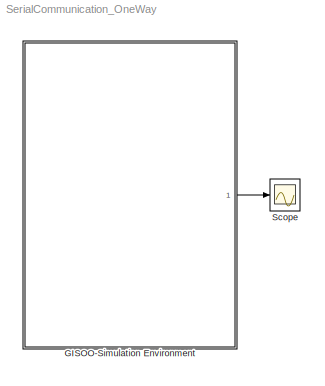
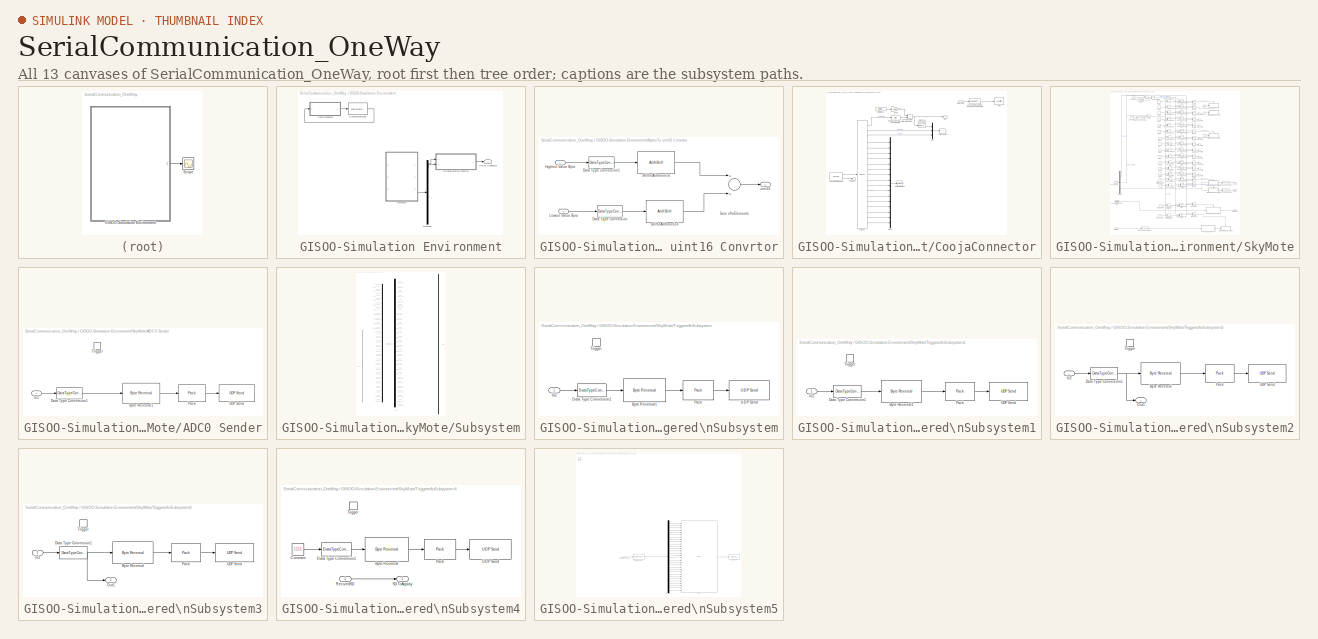
[diagram: thumbnail index - all 13 canvases of the model, root first then tree order]
MODEL SerialCommunication_OneWay
KIND model
BLOCK [SubSystem] GISOO-Simulation Environment
  FunctionWithSeparateData = off
  MaskHideContents = off
  MinAlgLoopOccurrences = off
  Opaque = off
  Ports = [0, 1]
  PropExecContextOutsideSubsystem = off
  RTWSystemCode = Auto
  RequestExecContextInheritance = off
  SID = 6
  TreatAsAtomicUnit = on
BLOCK [SubSystem] GISOO-Simulation Environment/BytesTo uint16 Convrtor
  FunctionWithSeparateData = off
  MaskHideContents = off
  MinAlgLoopOccurrences = off
  Opaque = off
  Ports = [2, 1]
  PropExecContextOutsideSubsystem = off
  RTWSystemCode = Auto
  RequestExecContextInheritance = off
  SID = 26
BLOCK [DataTypeConversion] GISOO-Simulation Environment/BytesTo uint16 Convrtor/Data Type Conversion
  OutDataTypeStr = uint16
  RndMeth = Floor
  SID = 26:422
  SaturateOnIntegerOverflow = off
BLOCK [DataTypeConversion] GISOO-Simulation Environment/BytesTo uint16 Convrtor/Data Type Conversion1
  OutDataTypeStr = uint16
  RndMeth = Floor
  SID = 26:423
  SaturateOnIntegerOverflow = off
BLOCK [Inport] GISOO-Simulation Environment/BytesTo uint16 Convrtor/Highest Value Byte
  IconDisplay = Port number
  SID = 26:420
BLOCK [Inport] GISOO-Simulation Environment/BytesTo uint16 Convrtor/Lowest Value Byte
  IconDisplay = Port number
  Port = 2
  SID = 26:421
BLOCK [ArithShift] GISOO-Simulation Environment/BytesTo uint16 Convrtor/Shift\nArithmetic4
  BitShiftDirection = Right
  InputPortMap = u0
  Ports = [1, 1]
  SID = 26:424
BLOCK [ArithShift] GISOO-Simulation Environment/BytesTo uint16 Convrtor/Shift\nArithmetic6
  BitShiftDirection = Left
  BitShiftNumber = 8
  InputPortMap = u0
  Ports = [1, 1]
  SID = 26:425
BLOCK [Sum] GISOO-Simulation Environment/BytesTo uint16 Convrtor/Sum of\nElements
  AccumDataTypeStr = Inherit: Same as first input
  CollapseDim = 4
  InputSameDT = off
  OutDataTypeStr = uint16
  Ports = [2, 1]
  SID = 26:426
  SaturateOnIntegerOverflow = off
BLOCK [Outport] GISOO-Simulation Environment/BytesTo uint16 Convrtor/uint16
  IconDisplay = Port number
  SID = 26:427
BLOCK [SubSystem] GISOO-Simulation Environment/CoojaConnector
  FunctionWithSeparateData = off
  MaskHideContents = off
  MinAlgLoopOccurrences = off
  Opaque = off
  Ports = [1, 1]
  PropExecContextOutsideSubsystem = off
  RTWSystemCode = Auto
  RequestExecContextInheritance = off
  SID = 7
BLOCK [RelationalOperator] GISOO-Simulation Environment/CoojaConnector/Check if Cooja\nis not at same time\n(behind)
  InputSameDT = off
  Operator = >
  OutDataTypeStr = boolean
  Ports = [2, 1]
  SID = 9
BLOCK [Reference] GISOO-Simulation Environment/CoojaConnector/Check that we don't loop forever,\nif Cooja never answers  REF=simulink/Logic and Bit\nOperations/Compare\nTo Constant
  OutDataTypeStr = uint8
  Ports = [1, 1]
  SID = 10
  SourceBlock = simulink/Logic and Bit\nOperations/Compare\nTo Constant
  SourceType = Compare To Constant
  ZeroCross = off
  const = 300000
  relop = <
BLOCK [DataTypeConversion] GISOO-Simulation Environment/CoojaConnector/Data Type Conversion1
  OutDataTypeStr = uint32
  RndMeth = Floor
  SID = 11
  SaturateOnIntegerOverflow = off
BLOCK [Goto] GISOO-Simulation Environment/CoojaConnector/DataForMotes
  SID = 12
  TagVisibility = global
BLOCK [Goto] GISOO-Simulation Environment/CoojaConnector/DataForMotes1
  GotoTag = SerialData
  SID = 13
  TagVisibility = global
BLOCK [Inport] GISOO-Simulation Environment/CoojaConnector/DelayNum.
  IconDisplay = Port number
  SID = 8
BLOCK [DigitalClock] GISOO-Simulation Environment/CoojaConnector/Digital Clock
  SID = 14
  SampleTime = -1
BLOCK [Mux] GISOO-Simulation Environment/CoojaConnector/Mux
  DisplayOption = bar
  Inputs = 3
  Ports = [3, 1]
  SID = 15
BLOCK [Mux] GISOO-Simulation Environment/CoojaConnector/Mux5
  DisplayOption = bar
  Inputs = 16
  Ports = [16, 1]
  SID = 16
BLOCK [Reference] GISOO-Simulation Environment/CoojaConnector/ReceiveFromCooja  REF=xpclib/UDP/Receive
  Ports = [0, 2]
  SID = 17
  SourceBlock = xpclib/UDP/Receive
  SourceType = xpcudpbytereceive
  ipAddress = 127.0.0.1
  ipPort = 55555
  sampletime = -1
  vblLen = off
  width = 28
BLOCK [Assertion] GISOO-Simulation Environment/CoojaConnector/Stop
  AssertionFailFcn = No communication with Cooja;
  SID = 18
BLOCK [Terminator] GISOO-Simulation Environment/CoojaConnector/Terminator
  SID = 19
BLOCK [Bias] GISOO-Simulation Environment/CoojaConnector/Tolerance\ndue to rounding errors
  SID = 20
  SaturateOnIntegerOverflow = off
BLOCK [Reference] GISOO-Simulation Environment/CoojaConnector/Unpack  REF=xpclib/UDP/Unpack
  Ports = [1, 19]
  SID = 21
  SourceBlock = xpclib/UDP/Unpack
  SourceType = xpcbyte2any
  byteAlign = 1
  datatypes = {'uint32','uint32','uint32','uint8','uint8','uint8','uint8','uint8','uint8','uint8','uint8','uint8','uint8','uint8','uint8','uint8','uint8','uint8','uint8'}
  dimensions = {[1],[1],[1],[1],[1],[1],[1],[1],[1],[1],[1],[1],[1],[1],[1],[1],[1],[1],[1]}
BLOCK [Outport] GISOO-Simulation Environment/CoojaConnector/Wait
  IconDisplay = Port number
  SID = 23
BLOCK [Gain] GISOO-Simulation Environment/CoojaConnector/to ms3
  Gain = 1000
  OutDataTypeStr = Inherit: Inherit via back propagation
  ParamDataTypeStr = uint32
  SID = 22
  SaturateOnIntegerOverflow = off
BLOCK [Demux] GISOO-Simulation Environment/Demux2
  DisplayOption = bar
  Outputs = 16
  Ports = [1, 16]
  SID = 27
BLOCK [Outport] GISOO-Simulation Environment/Serial Connector
  IconDisplay = Port number
  SID = 255
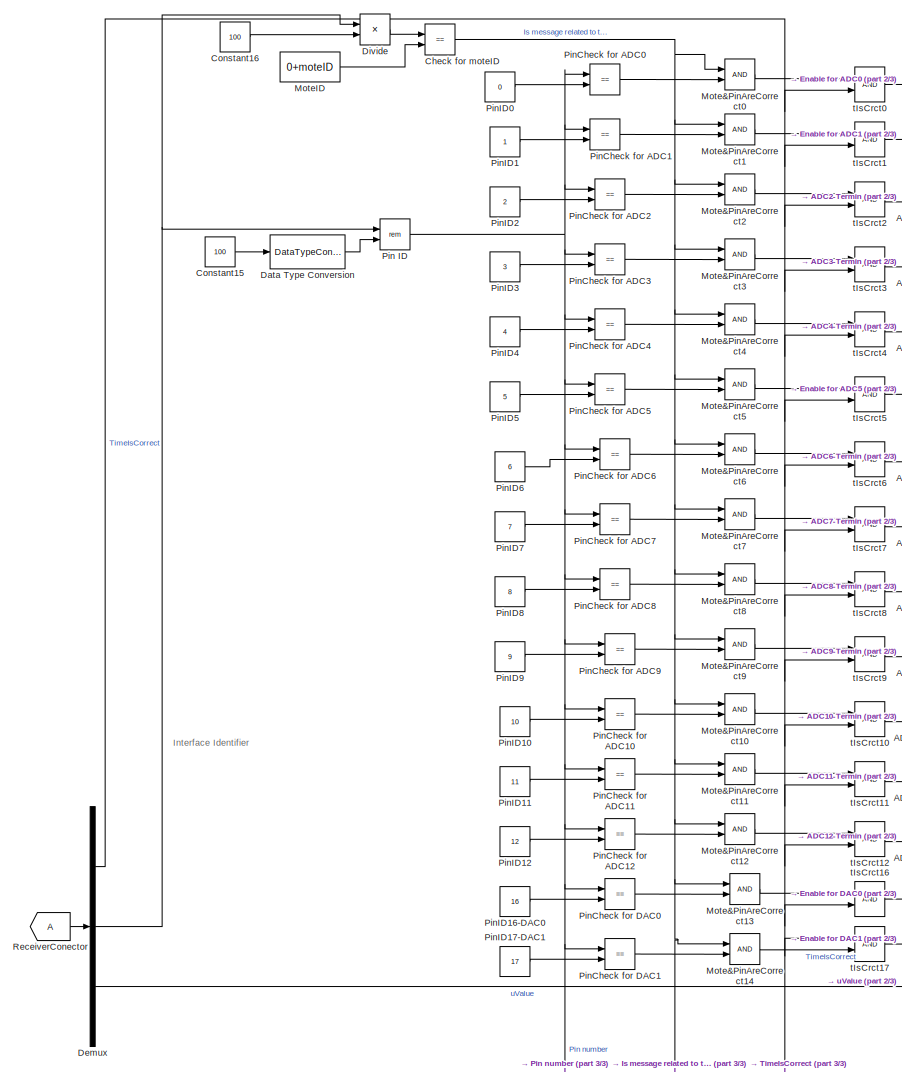
[diagram: GISOO-Simulation Environment/SkyMote - part 1/3, central region]
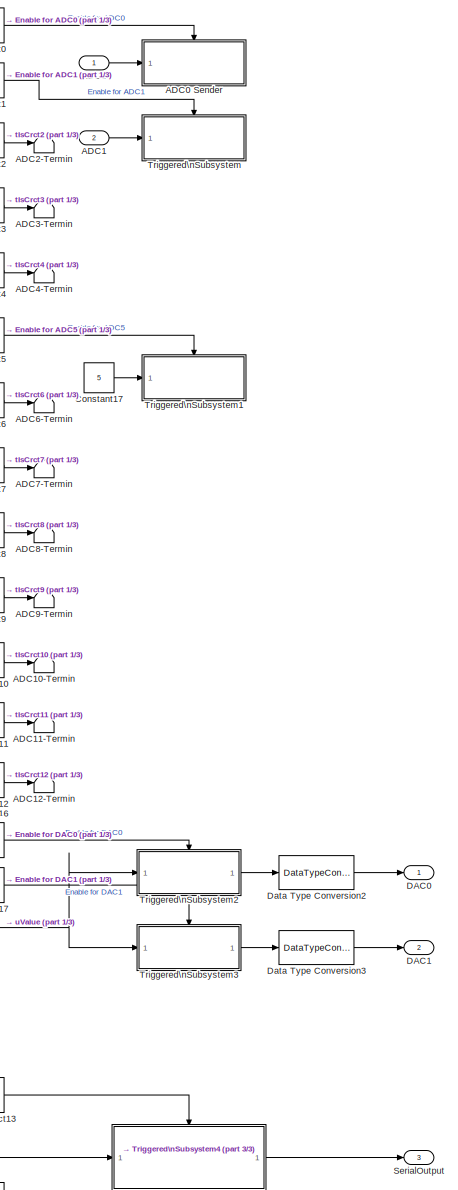
[diagram: GISOO-Simulation Environment/SkyMote - part 2/3, right side, full height]
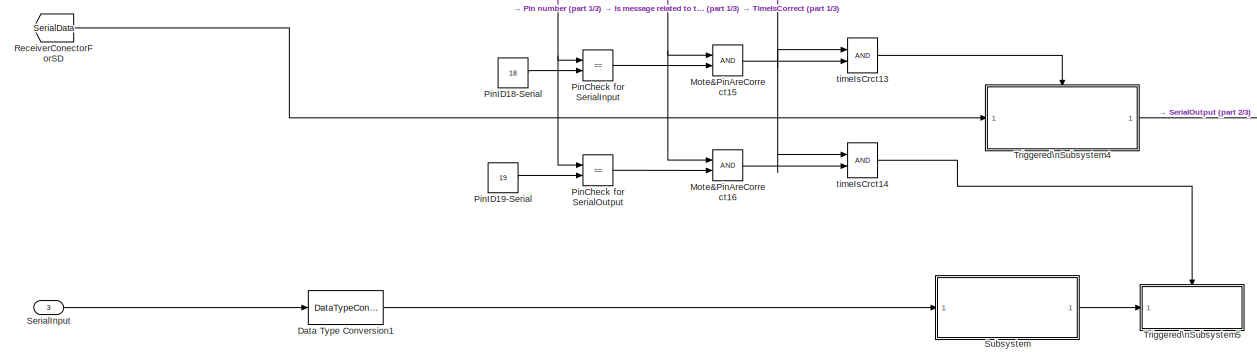
[diagram: GISOO-Simulation Environment/SkyMote - part 3/3, full width, bottom band]
BLOCK [SubSystem] GISOO-Simulation Environment/SkyMote
  FunctionWithSeparateData = off
  MaskHideContents = off
  MinAlgLoopOccurrences = off
  Opaque = off
  Ports = [3, 3]
  PropExecContextOutsideSubsystem = off
  RTWSystemCode = Auto
  RequestExecContextInheritance = off
  SID = 28
BLOCK [Inport] GISOO-Simulation Environment/SkyMote/ADC0
  IconDisplay = Port number
  SID = 29
BLOCK [SubSystem] GISOO-Simulation Environment/SkyMote/ADC0 Sender
  FunctionWithSeparateData = off
  MaskHideContents = off
  MinAlgLoopOccurrences = off
  Opaque = off
  Ports = [1, 0, 0, 1]
  PropExecContextOutsideSubsystem = off
  RTWSystemCode = Auto
  RequestExecContextInheritance = off
  SID = 32
  TreatAsAtomicUnit = on
BLOCK [Reference] GISOO-Simulation Environment/SkyMote/ADC0 Sender/Byte Reversal1  REF=etargetslib/Byte Reversal
  Ports = [1, 1]
  SID = 35
  SourceBlock = etargetslib/Byte Reversal
  SourceType = Byte Reversal
  numInp = 1
BLOCK [DataTypeConversion] GISOO-Simulation Environment/SkyMote/ADC0 Sender/Data Type Conversion1
  OutDataTypeStr = uint32
  RndMeth = Floor
  SID = 36
  SaturateOnIntegerOverflow = off
BLOCK [Inport] GISOO-Simulation Environment/SkyMote/ADC0 Sender/In2
  IconDisplay = Port number
  SID = 33
BLOCK [Reference] GISOO-Simulation Environment/SkyMote/ADC0 Sender/Pack  REF=xpclib/UDP/Pack
  Ports = [1, 1]
  SID = 37
  SourceBlock = xpclib/UDP/Pack
  SourceType = xpcany2byte
  byteAlign = 1
  datatypes = {'uint32'}
BLOCK [TriggerPort] GISOO-Simulation Environment/SkyMote/ADC0 Sender/Trigger
  Ports = []
  SID = 34
  StatesWhenEnabling = held
BLOCK [Reference] GISOO-Simulation Environment/SkyMote/ADC0 Sender/UDP Send  REF=dspnetwork/UDP Send
  Ports = [1]
  SID = 38
  SourceBlock = dspnetwork/UDP Send
  SourceType = UDP Send
  localPort = -1
  localPortSource = Automatically determine
  localURL = '0.0.0.0'
  remotePort = 18000+moteID
  remoteURL = '127.0.0.1'
  sampletime = -1
  separateLengthPort = 0
BLOCK [Inport] GISOO-Simulation Environment/SkyMote/ADC1
  IconDisplay = Port number
  Port = 2
  SID = 30
BLOCK [Terminator] GISOO-Simulation Environment/SkyMote/ADC10-Termin
  SID = 39
BLOCK [Terminator] GISOO-Simulation Environment/SkyMote/ADC11-Termin
  SID = 40
BLOCK [Terminator] GISOO-Simulation Environment/SkyMote/ADC12-Termin
  SID = 41
BLOCK [Terminator] GISOO-Simulation Environment/SkyMote/ADC2-Termin
  SID = 42
BLOCK [Terminator] GISOO-Simulation Environment/SkyMote/ADC3-Termin
  SID = 43
BLOCK [Terminator] GISOO-Simulation Environment/SkyMote/ADC4-Termin
  SID = 44
BLOCK [Terminator] GISOO-Simulation Environment/SkyMote/ADC6-Termin
  SID = 45
BLOCK [Terminator] GISOO-Simulation Environment/SkyMote/ADC7-Termin
  SID = 46
BLOCK [Terminator] GISOO-Simulation Environment/SkyMote/ADC8-Termin
  SID = 47
BLOCK [Terminator] GISOO-Simulation Environment/SkyMote/ADC9-Termin
  SID = 48
BLOCK [RelationalOperator] GISOO-Simulation Environment/SkyMote/Check for moteID
  InputSameDT = off
  Operator = ==
  OutDataTypeStr = boolean
  Ports = [2, 1]
  SID = 49
BLOCK [Constant] GISOO-Simulation Environment/SkyMote/Constant15
  SID = 50
  Value = 100
BLOCK [Constant] GISOO-Simulation Environment/SkyMote/Constant16
  SID = 51
  Value = 100
BLOCK [Constant] GISOO-Simulation Environment/SkyMote/Constant17
  SID = 52
  Value = 5
BLOCK [Outport] GISOO-Simulation Environment/SkyMote/DAC0
  IconDisplay = Port number
  SID = 251
BLOCK [Outport] GISOO-Simulation Environment/SkyMote/DAC1
  IconDisplay = Port number
  Port = 2
  SID = 252
BLOCK [DataTypeConversion] GISOO-Simulation Environment/SkyMote/Data Type Conversion
  OutDataTypeStr = uint32
  RndMeth = Floor
  SID = 53
  SaturateOnIntegerOverflow = off
BLOCK [DataTypeConversion] GISOO-Simulation Environment/SkyMote/Data Type Conversion1
  OutDataTypeStr = uint32
  RndMeth = Floor
  SID = 54
  SaturateOnIntegerOverflow = off
BLOCK [DataTypeConversion] GISOO-Simulation Environment/SkyMote/Data Type Conversion2
  OutDataTypeStr = double
  RndMeth = Floor
  SID = 55
  SaturateOnIntegerOverflow = off
BLOCK [DataTypeConversion] GISOO-Simulation Environment/SkyMote/Data Type Conversion3
  OutDataTypeStr = double
  RndMeth = Floor
  SID = 56
  SaturateOnIntegerOverflow = off
BLOCK [Demux] GISOO-Simulation Environment/SkyMote/Demux
  DisplayOption = bar
  Outputs = 3
  Ports = [1, 3]
  SID = 57
BLOCK [Product] GISOO-Simulation Environment/SkyMote/Divide
  InputSameDT = off
  Inputs = */
  OutDataTypeStr = int32
  Ports = [2, 1]
  RndMeth = Floor
  SID = 58
  SaturateOnIntegerOverflow = off
BLOCK [Logic] GISOO-Simulation Environment/SkyMote/Mote&PinAreCorrect0
  AllPortsSameDT = off
  OutDataTypeStr = boolean
  Ports = [2, 1]
  SID = 59
BLOCK [Logic] GISOO-Simulation Environment/SkyMote/Mote&PinAreCorrect1
  AllPortsSameDT = off
  OutDataTypeStr = boolean
  Ports = [2, 1]
  SID = 60
BLOCK [Logic] GISOO-Simulation Environment/SkyMote/Mote&PinAreCorrect10
  AllPortsSameDT = off
  OutDataTypeStr = boolean
  Ports = [2, 1]
  SID = 61
BLOCK [Logic] GISOO-Simulation Environment/SkyMote/Mote&PinAreCorrect11
  AllPortsSameDT = off
  OutDataTypeStr = boolean
  Ports = [2, 1]
  SID = 62
BLOCK [Logic] GISOO-Simulation Environment/SkyMote/Mote&PinAreCorrect12
  AllPortsSameDT = off
  OutDataTypeStr = boolean
  Ports = [2, 1]
  SID = 63
BLOCK [Logic] GISOO-Simulation Environment/SkyMote/Mote&PinAreCorrect13
  AllPortsSameDT = off
  OutDataTypeStr = boolean
  Ports = [2, 1]
  SID = 64
BLOCK [Logic] GISOO-Simulation Environment/SkyMote/Mote&PinAreCorrect14
  AllPortsSameDT = off
  OutDataTypeStr = boolean
  Ports = [2, 1]
  SID = 65
BLOCK [Logic] GISOO-Simulation Environment/SkyMote/Mote&PinAreCorrect15
  AllPortsSameDT = off
  OutDataTypeStr = boolean
  Ports = [2, 1]
  SID = 66
BLOCK [Logic] GISOO-Simulation Environment/SkyMote/Mote&PinAreCorrect16
  AllPortsSameDT = off
  OutDataTypeStr = boolean
  Ports = [2, 1]
  SID = 67
BLOCK [Logic] GISOO-Simulation Environment/SkyMote/Mote&PinAreCorrect2
  AllPortsSameDT = off
  OutDataTypeStr = boolean
  Ports = [2, 1]
  SID = 68
BLOCK [Logic] GISOO-Simulation Environment/SkyMote/Mote&PinAreCorrect3
  AllPortsSameDT = off
  OutDataTypeStr = boolean
  Ports = [2, 1]
  SID = 69
BLOCK [Logic] GISOO-Simulation Environment/SkyMote/Mote&PinAreCorrect4
  AllPortsSameDT = off
  OutDataTypeStr = boolean
  Ports = [2, 1]
  SID = 70
BLOCK [Logic] GISOO-Simulation Environment/SkyMote/Mote&PinAreCorrect5
  AllPortsSameDT = off
  OutDataTypeStr = boolean
  Ports = [2, 1]
  SID = 71
BLOCK [Logic] GISOO-Simulation Environment/SkyMote/Mote&PinAreCorrect6
  AllPortsSameDT = off
  OutDataTypeStr = boolean
  Ports = [2, 1]
  SID = 72
BLOCK [Logic] GISOO-Simulation Environment/SkyMote/Mote&PinAreCorrect7
  AllPortsSameDT = off
  OutDataTypeStr = boolean
  Ports = [2, 1]
  SID = 73
BLOCK [Logic] GISOO-Simulation Environment/SkyMote/Mote&PinAreCorrect8
  AllPortsSameDT = off
  OutDataTypeStr = boolean
  Ports = [2, 1]
  SID = 74
BLOCK [Logic] GISOO-Simulation Environment/SkyMote/Mote&PinAreCorrect9
  AllPortsSameDT = off
  OutDataTypeStr = boolean
  Ports = [2, 1]
  SID = 75
BLOCK [Constant] GISOO-Simulation Environment/SkyMote/MoteID
  SID = 76
  Value = 0+moteID
BLOCK [Math] GISOO-Simulation Environment/SkyMote/Pin ID
  Operator = rem
  Ports = [2, 1]
  SID = 77
BLOCK [RelationalOperator] GISOO-Simulation Environment/SkyMote/PinCheck for ADC0
  InputSameDT = off
  Operator = ==
  OutDataTypeStr = boolean
  Ports = [2, 1]
  SID = 78
BLOCK [RelationalOperator] GISOO-Simulation Environment/SkyMote/PinCheck for ADC1
  InputSameDT = off
  Operator = ==
  OutDataTypeStr = boolean
  Ports = [2, 1]
  SID = 79
BLOCK [RelationalOperator] GISOO-Simulation Environment/SkyMote/PinCheck for ADC10
  InputSameDT = off
  Operator = ==
  OutDataTypeStr = boolean
  Ports = [2, 1]
  SID = 80
BLOCK [RelationalOperator] GISOO-Simulation Environment/SkyMote/PinCheck for ADC11
  InputSameDT = off
  Operator = ==
  OutDataTypeStr = boolean
  Ports = [2, 1]
  SID = 81
BLOCK [RelationalOperator] GISOO-Simulation Environment/SkyMote/PinCheck for ADC12
  InputSameDT = off
  Operator = ==
  OutDataTypeStr = boolean
  Ports = [2, 1]
  SID = 82
BLOCK [RelationalOperator] GISOO-Simulation Environment/SkyMote/PinCheck for ADC2
  InputSameDT = off
  Operator = ==
  OutDataTypeStr = boolean
  Ports = [2, 1]
  SID = 83
BLOCK [RelationalOperator] GISOO-Simulation Environment/SkyMote/PinCheck for ADC3
  InputSameDT = off
  Operator = ==
  OutDataTypeStr = boolean
  Ports = [2, 1]
  SID = 84
BLOCK [RelationalOperator] GISOO-Simulation Environment/SkyMote/PinCheck for ADC4
  InputSameDT = off
  Operator = ==
  OutDataTypeStr = boolean
  Ports = [2, 1]
  SID = 85
BLOCK [RelationalOperator] GISOO-Simulation Environment/SkyMote/PinCheck for ADC5
  InputSameDT = off
  Operator = ==
  OutDataTypeStr = boolean
  Ports = [2, 1]
  SID = 86
BLOCK [RelationalOperator] GISOO-Simulation Environment/SkyMote/PinCheck for ADC6
  InputSameDT = off
  Operator = ==
  OutDataTypeStr = boolean
  Ports = [2, 1]
  SID = 87
BLOCK [RelationalOperator] GISOO-Simulation Environment/SkyMote/PinCheck for ADC7
  InputSameDT = off
  Operator = ==
  OutDataTypeStr = boolean
  Ports = [2, 1]
  SID = 88
BLOCK [RelationalOperator] GISOO-Simulation Environment/SkyMote/PinCheck for ADC8
  InputSameDT = off
  Operator = ==
  OutDataTypeStr = boolean
  Ports = [2, 1]
  SID = 89
BLOCK [RelationalOperator] GISOO-Simulation Environment/SkyMote/PinCheck for ADC9
  InputSameDT = off
  Operator = ==
  OutDataTypeStr = boolean
  Ports = [2, 1]
  SID = 90
BLOCK [RelationalOperator] GISOO-Simulation Environment/SkyMote/PinCheck for DAC0
  InputSameDT = off
  Operator = ==
  OutDataTypeStr = boolean
  Ports = [2, 1]
  SID = 91
BLOCK [RelationalOperator] GISOO-Simulation Environment/SkyMote/PinCheck for DAC1
  InputSameDT = off
  Operator = ==
  OutDataTypeStr = boolean
  Ports = [2, 1]
  SID = 92
BLOCK [RelationalOperator] GISOO-Simulation Environment/SkyMote/PinCheck for SerialInput
  InputSameDT = off
  Operator = ==
  OutDataTypeStr = boolean
  Ports = [2, 1]
  SID = 93
BLOCK [RelationalOperator] GISOO-Simulation Environment/SkyMote/PinCheck for SerialOutput
  InputSameDT = off
  Operator = ==
  OutDataTypeStr = boolean
  Ports = [2, 1]
  SID = 94
BLOCK [Constant] GISOO-Simulation Environment/SkyMote/PinID0
  SID = 95
  Value = 0
BLOCK [Constant] GISOO-Simulation Environment/SkyMote/PinID1
  SID = 96
BLOCK [Constant] GISOO-Simulation Environment/SkyMote/PinID10
  SID = 97
  Value = 10
BLOCK [Constant] GISOO-Simulation Environment/SkyMote/PinID11
  SID = 98
  Value = 11
BLOCK [Constant] GISOO-Simulation Environment/SkyMote/PinID12
  SID = 99
  Value = 12
BLOCK [Constant] GISOO-Simulation Environment/SkyMote/PinID16-DAC0
  SID = 100
  Value = 16
BLOCK [Constant] GISOO-Simulation Environment/SkyMote/PinID17-DAC1
  SID = 101
  Value = 17
BLOCK [Constant] GISOO-Simulation Environment/SkyMote/PinID18-Serial
  SID = 102
  Value = 18
BLOCK [Constant] GISOO-Simulation Environment/SkyMote/PinID19-Serial
  SID = 103
  Value = 19
BLOCK [Constant] GISOO-Simulation Environment/SkyMote/PinID2
  SID = 104
  Value = 2
BLOCK [Constant] GISOO-Simulation Environment/SkyMote/PinID3
  SID = 105
  Value = 3
BLOCK [Constant] GISOO-Simulation Environment/SkyMote/PinID4
  SID = 106
  Value = 4
BLOCK [Constant] GISOO-Simulation Environment/SkyMote/PinID5
  SID = 107
  Value = 5
BLOCK [Constant] GISOO-Simulation Environment/SkyMote/PinID6
  SID = 108
  Value = 6
BLOCK [Constant] GISOO-Simulation Environment/SkyMote/PinID7
  SID = 109
  Value = 7
BLOCK [Constant] GISOO-Simulation Environment/SkyMote/PinID8
  SID = 110
  Value = 8
BLOCK [Constant] GISOO-Simulation Environment/SkyMote/PinID9
  SID = 111
  Value = 9
BLOCK [From] GISOO-Simulation Environment/SkyMote/ReceiverConector
  SID = 112
  TagVisibility = global
BLOCK [From] GISOO-Simulation Environment/SkyMote/ReceiverConectorForSD
  GotoTag = SerialData
  SID = 113
  TagVisibility = global
BLOCK [Inport] GISOO-Simulation Environment/SkyMote/SerialInput
  IconDisplay = Port number
  Port = 3
  SID = 31
BLOCK [Outport] GISOO-Simulation Environment/SkyMote/SerialOutput
  IconDisplay = Port number
  Port = 3
  SID = 253
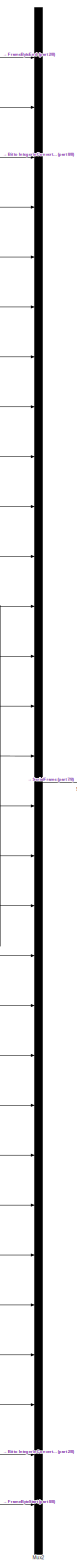
[diagram: GISOO-Simulation Environment/SkyMote/Subsystem - part 1/8, right side, full height]
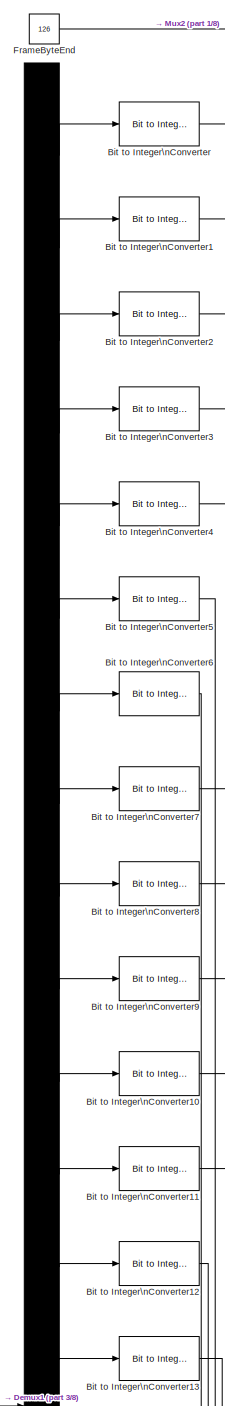
[diagram: GISOO-Simulation Environment/SkyMote/Subsystem - part 2/8, top center region]
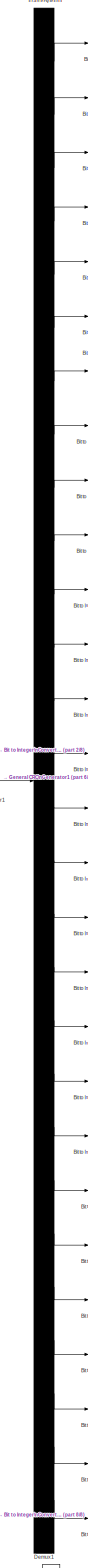
[diagram: GISOO-Simulation Environment/SkyMote/Subsystem - part 3/8, center side, full height]
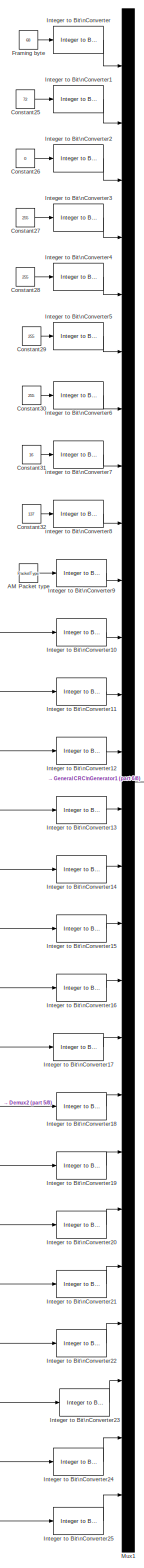
[diagram: GISOO-Simulation Environment/SkyMote/Subsystem - part 4/8, left side, full height]
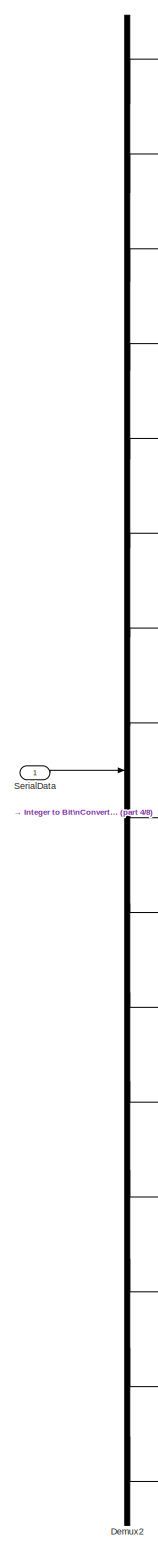
[diagram: GISOO-Simulation Environment/SkyMote/Subsystem - part 5/8, middle left region]
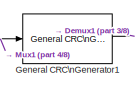
[diagram: GISOO-Simulation Environment/SkyMote/Subsystem - part 6/8, central region]
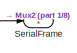
[diagram: GISOO-Simulation Environment/SkyMote/Subsystem - part 7/8, middle right region]
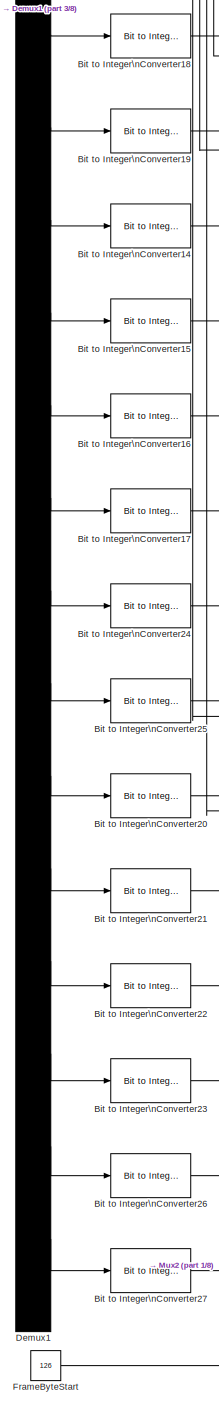
[diagram: GISOO-Simulation Environment/SkyMote/Subsystem - part 8/8, bottom center region]
BLOCK [SubSystem] GISOO-Simulation Environment/SkyMote/Subsystem
  FunctionWithSeparateData = off
  MaskHideContents = off
  MinAlgLoopOccurrences = off
  Opaque = off
  Ports = [1, 1]
  PropExecContextOutsideSubsystem = off
  RTWSystemCode = Auto
  RequestExecContextInheritance = off
  SID = 114
BLOCK [Constant] GISOO-Simulation Environment/SkyMote/Subsystem/AM Packet type
  OutDataTypeStr = double
  SID = 116
  Value = PacketType
BLOCK [Reference] GISOO-Simulation Environment/SkyMote/Subsystem/Bit to Integer\nConverter  REF=commutil2/Bit to Integer\nConverter
  Ports = [1, 1]
  SID = 117
  SourceBlock = commutil2/Bit to Integer\nConverter
  SourceType = Bit to Integer Converter
  bitOrder = MSB first
  nbits = 8
  outDtype = Inherit via internal rule
  outDtypeSigned = Inherit via internal rule
  signedOutputValues = Unsigned
BLOCK [Reference] GISOO-Simulation Environment/SkyMote/Subsystem/Bit to Integer\nConverter1  REF=commutil2/Bit to Integer\nConverter
  Ports = [1, 1]
  SID = 118
  SourceBlock = commutil2/Bit to Integer\nConverter
  SourceType = Bit to Integer Converter
  bitOrder = MSB first
  nbits = 8
  outDtype = Inherit via internal rule
  outDtypeSigned = Inherit via internal rule
  signedOutputValues = Unsigned
BLOCK [Reference] GISOO-Simulation Environment/SkyMote/Subsystem/Bit to Integer\nConverter10  REF=commutil2/Bit to Integer\nConverter
  Ports = [1, 1]
  SID = 119
  SourceBlock = commutil2/Bit to Integer\nConverter
  SourceType = Bit to Integer Converter
  bitOrder = MSB first
  nbits = 8
  outDtype = Inherit via internal rule
  outDtypeSigned = Inherit via internal rule
  signedOutputValues = Unsigned
BLOCK [Reference] GISOO-Simulation Environment/SkyMote/Subsystem/Bit to Integer\nConverter11  REF=commutil2/Bit to Integer\nConverter
  Ports = [1, 1]
  SID = 120
  SourceBlock = commutil2/Bit to Integer\nConverter
  SourceType = Bit to Integer Converter
  bitOrder = MSB first
  nbits = 8
  outDtype = Inherit via internal rule
  outDtypeSigned = Inherit via internal rule
  signedOutputValues = Unsigned
BLOCK [Reference] GISOO-Simulation Environment/SkyMote/Subsystem/Bit to Integer\nConverter12  REF=commutil2/Bit to Integer\nConverter
  Ports = [1, 1]
  SID = 121
  SourceBlock = commutil2/Bit to Integer\nConverter
  SourceType = Bit to Integer Converter
  bitOrder = MSB first
  nbits = 8
  outDtype = Inherit via internal rule
  outDtypeSigned = Inherit via internal rule
  signedOutputValues = Unsigned
BLOCK [Reference] GISOO-Simulation Environment/SkyMote/Subsystem/Bit to Integer\nConverter13  REF=commutil2/Bit to Integer\nConverter
  Ports = [1, 1]
  SID = 122
  SourceBlock = commutil2/Bit to Integer\nConverter
  SourceType = Bit to Integer Converter
  bitOrder = MSB first
  nbits = 8
  outDtype = Inherit via internal rule
  outDtypeSigned = Inherit via internal rule
  signedOutputValues = Unsigned
BLOCK [Reference] GISOO-Simulation Environment/SkyMote/Subsystem/Bit to Integer\nConverter14  REF=commutil2/Bit to Integer\nConverter
  Ports = [1, 1]
  SID = 123
  SourceBlock = commutil2/Bit to Integer\nConverter
  SourceType = Bit to Integer Converter
  bitOrder = MSB first
  nbits = 8
  outDtype = Inherit via internal rule
  outDtypeSigned = Inherit via internal rule
  signedOutputValues = Unsigned
BLOCK [Reference] GISOO-Simulation Environment/SkyMote/Subsystem/Bit to Integer\nConverter15  REF=commutil2/Bit to Integer\nConverter
  Ports = [1, 1]
  SID = 124
  SourceBlock = commutil2/Bit to Integer\nConverter
  SourceType = Bit to Integer Converter
  bitOrder = MSB first
  nbits = 8
  outDtype = Inherit via internal rule
  outDtypeSigned = Inherit via internal rule
  signedOutputValues = Unsigned
BLOCK [Reference] GISOO-Simulation Environment/SkyMote/Subsystem/Bit to Integer\nConverter16  REF=commutil2/Bit to Integer\nConverter
  Ports = [1, 1]
  SID = 125
  SourceBlock = commutil2/Bit to Integer\nConverter
  SourceType = Bit to Integer Converter
  bitOrder = MSB first
  nbits = 8
  outDtype = Inherit via internal rule
  outDtypeSigned = Inherit via internal rule
  signedOutputValues = Unsigned
BLOCK [Reference] GISOO-Simulation Environment/SkyMote/Subsystem/Bit to Integer\nConverter17  REF=commutil2/Bit to Integer\nConverter
  Ports = [1, 1]
  SID = 126
  SourceBlock = commutil2/Bit to Integer\nConverter
  SourceType = Bit to Integer Converter
  bitOrder = MSB first
  nbits = 8
  outDtype = Inherit via internal rule
  outDtypeSigned = Inherit via internal rule
  signedOutputValues = Unsigned
BLOCK [Reference] GISOO-Simulation Environment/SkyMote/Subsystem/Bit to Integer\nConverter18  REF=commutil2/Bit to Integer\nConverter
  Ports = [1, 1]
  SID = 127
  SourceBlock = commutil2/Bit to Integer\nConverter
  SourceType = Bit to Integer Converter
  bitOrder = MSB first
  nbits = 8
  outDtype = Inherit via internal rule
  outDtypeSigned = Inherit via internal rule
  signedOutputValues = Unsigned
BLOCK [Reference] GISOO-Simulation Environment/SkyMote/Subsystem/Bit to Integer\nConverter19  REF=commutil2/Bit to Integer\nConverter
  Ports = [1, 1]
  SID = 128
  SourceBlock = commutil2/Bit to Integer\nConverter
  SourceType = Bit to Integer Converter
  bitOrder = MSB first
  nbits = 8
  outDtype = Inherit via internal rule
  outDtypeSigned = Inherit via internal rule
  signedOutputValues = Unsigned
BLOCK [Reference] GISOO-Simulation Environment/SkyMote/Subsystem/Bit to Integer\nConverter2  REF=commutil2/Bit to Integer\nConverter
  Ports = [1, 1]
  SID = 129
  SourceBlock = commutil2/Bit to Integer\nConverter
  SourceType = Bit to Integer Converter
  bitOrder = MSB first
  nbits = 8
  outDtype = Inherit via internal rule
  outDtypeSigned = Inherit via internal rule
  signedOutputValues = Unsigned
BLOCK [Reference] GISOO-Simulation Environment/SkyMote/Subsystem/Bit to Integer\nConverter20  REF=commutil2/Bit to Integer\nConverter
  Ports = [1, 1]
  SID = 130
  SourceBlock = commutil2/Bit to Integer\nConverter
  SourceType = Bit to Integer Converter
  bitOrder = MSB first
  nbits = 8
  outDtype = Inherit via internal rule
  outDtypeSigned = Inherit via internal rule
  signedOutputValues = Unsigned
BLOCK [Reference] GISOO-Simulation Environment/SkyMote/Subsystem/Bit to Integer\nConverter21  REF=commutil2/Bit to Integer\nConverter
  Ports = [1, 1]
  SID = 131
  SourceBlock = commutil2/Bit to Integer\nConverter
  SourceType = Bit to Integer Converter
  bitOrder = MSB first
  nbits = 8
  outDtype = Inherit via internal rule
  outDtypeSigned = Inherit via internal rule
  signedOutputValues = Unsigned
BLOCK [Reference] GISOO-Simulation Environment/SkyMote/Subsystem/Bit to Integer\nConverter22  REF=commutil2/Bit to Integer\nConverter
  Ports = [1, 1]
  SID = 132
  SourceBlock = commutil2/Bit to Integer\nConverter
  SourceType = Bit to Integer Converter
  bitOrder = MSB first
  nbits = 8
  outDtype = Inherit via internal rule
  outDtypeSigned = Inherit via internal rule
  signedOutputValues = Unsigned
BLOCK [Reference] GISOO-Simulation Environment/SkyMote/Subsystem/Bit to Integer\nConverter23  REF=commutil2/Bit to Integer\nConverter
  Ports = [1, 1]
  SID = 133
  SourceBlock = commutil2/Bit to Integer\nConverter
  SourceType = Bit to Integer Converter
  bitOrder = MSB first
  nbits = 8
  outDtype = Inherit via internal rule
  outDtypeSigned = Inherit via internal rule
  signedOutputValues = Unsigned
BLOCK [Reference] GISOO-Simulation Environment/SkyMote/Subsystem/Bit to Integer\nConverter24  REF=commutil2/Bit to Integer\nConverter
  Ports = [1, 1]
  SID = 134
  SourceBlock = commutil2/Bit to Integer\nConverter
  SourceType = Bit to Integer Converter
  bitOrder = MSB first
  nbits = 8
  outDtype = Inherit via internal rule
  outDtypeSigned = Inherit via internal rule
  signedOutputValues = Unsigned
BLOCK [Reference] GISOO-Simulation Environment/SkyMote/Subsystem/Bit to Integer\nConverter25  REF=commutil2/Bit to Integer\nConverter
  Ports = [1, 1]
  SID = 135
  SourceBlock = commutil2/Bit to Integer\nConverter
  SourceType = Bit to Integer Converter
  bitOrder = MSB first
  nbits = 8
  outDtype = Inherit via internal rule
  outDtypeSigned = Inherit via internal rule
  signedOutputValues = Unsigned
BLOCK [Reference] GISOO-Simulation Environment/SkyMote/Subsystem/Bit to Integer\nConverter26  REF=commutil2/Bit to Integer\nConverter
  Ports = [1, 1]
  SID = 136
  SourceBlock = commutil2/Bit to Integer\nConverter
  SourceType = Bit to Integer Converter
  bitOrder = MSB first
  nbits = 8
  outDtype = Inherit via internal rule
  outDtypeSigned = Inherit via internal rule
  signedOutputValues = Unsigned
BLOCK [Reference] GISOO-Simulation Environment/SkyMote/Subsystem/Bit to Integer\nConverter27  REF=commutil2/Bit to Integer\nConverter
  Ports = [1, 1]
  SID = 137
  SourceBlock = commutil2/Bit to Integer\nConverter
  SourceType = Bit to Integer Converter
  bitOrder = MSB first
  nbits = 8
  outDtype = Inherit via internal rule
  outDtypeSigned = Inherit via internal rule
  signedOutputValues = Unsigned
BLOCK [Reference] GISOO-Simulation Environment/SkyMote/Subsystem/Bit to Integer\nConverter3  REF=commutil2/Bit to Integer\nConverter
  Ports = [1, 1]
  SID = 138
  SourceBlock = commutil2/Bit to Integer\nConverter
  SourceType = Bit to Integer Converter
  bitOrder = MSB first
  nbits = 8
  outDtype = Inherit via internal rule
  outDtypeSigned = Inherit via internal rule
  signedOutputValues = Unsigned
BLOCK [Reference] GISOO-Simulation Environment/SkyMote/Subsystem/Bit to Integer\nConverter4  REF=commutil2/Bit to Integer\nConverter
  Ports = [1, 1]
  SID = 139
  SourceBlock = commutil2/Bit to Integer\nConverter
  SourceType = Bit to Integer Converter
  bitOrder = MSB first
  nbits = 8
  outDtype = Inherit via internal rule
  outDtypeSigned = Inherit via internal rule
  signedOutputValues = Unsigned
BLOCK [Reference] GISOO-Simulation Environment/SkyMote/Subsystem/Bit to Integer\nConverter5  REF=commutil2/Bit to Integer\nConverter
  Ports = [1, 1]
  SID = 140
  SourceBlock = commutil2/Bit to Integer\nConverter
  SourceType = Bit to Integer Converter
  bitOrder = MSB first
  nbits = 8
  outDtype = Inherit via internal rule
  outDtypeSigned = Inherit via internal rule
  signedOutputValues = Unsigned
BLOCK [Reference] GISOO-Simulation Environment/SkyMote/Subsystem/Bit to Integer\nConverter6  REF=commutil2/Bit to Integer\nConverter
  Ports = [1, 1]
  SID = 141
  SourceBlock = commutil2/Bit to Integer\nConverter
  SourceType = Bit to Integer Converter
  bitOrder = MSB first
  nbits = 8
  outDtype = Inherit via internal rule
  outDtypeSigned = Inherit via internal rule
  signedOutputValues = Unsigned
BLOCK [Reference] GISOO-Simulation Environment/SkyMote/Subsystem/Bit to Integer\nConverter7  REF=commutil2/Bit to Integer\nConverter
  Ports = [1, 1]
  SID = 142
  SourceBlock = commutil2/Bit to Integer\nConverter
  SourceType = Bit to Integer Converter
  bitOrder = MSB first
  nbits = 8
  outDtype = Inherit via internal rule
  outDtypeSigned = Inherit via internal rule
  signedOutputValues = Unsigned
BLOCK [Reference] GISOO-Simulation Environment/SkyMote/Subsystem/Bit to Integer\nConverter8  REF=commutil2/Bit to Integer\nConverter
  Ports = [1, 1]
  SID = 143
  SourceBlock = commutil2/Bit to Integer\nConverter
  SourceType = Bit to Integer Converter
  bitOrder = MSB first
  nbits = 8
  outDtype = Inherit via internal rule
  outDtypeSigned = Inherit via internal rule
  signedOutputValues = Unsigned
BLOCK [Reference] GISOO-Simulation Environment/SkyMote/Subsystem/Bit to Integer\nConverter9  REF=commutil2/Bit to Integer\nConverter
  Ports = [1, 1]
  SID = 144
  SourceBlock = commutil2/Bit to Integer\nConverter
  SourceType = Bit to Integer Converter
  bitOrder = MSB first
  nbits = 8
  outDtype = Inherit via internal rule
  outDtypeSigned = Inherit via internal rule
  signedOutputValues = Unsigned
BLOCK [Constant] GISOO-Simulation Environment/SkyMote/Subsystem/Constant25
  OutDataTypeStr = double
  SID = 145
  Value = 72
BLOCK [Constant] GISOO-Simulation Environment/SkyMote/Subsystem/Constant26
  OutDataTypeStr = double
  SID = 146
  Value = 0
BLOCK [Constant] GISOO-Simulation Environment/SkyMote/Subsystem/Constant27
  OutDataTypeStr = double
  SID = 147
  Value = 255
BLOCK [Constant] GISOO-Simulation Environment/SkyMote/Subsystem/Constant28
  OutDataTypeStr = double
  SID = 148
  Value = 255
BLOCK [Constant] GISOO-Simulation Environment/SkyMote/Subsystem/Constant29
  OutDataTypeStr = double
  SID = 149
  Value = 255
BLOCK [Constant] GISOO-Simulation Environment/SkyMote/Subsystem/Constant30
  OutDataTypeStr = double
  SID = 150
  Value = 255
BLOCK [Constant] GISOO-Simulation Environment/SkyMote/Subsystem/Constant31
  OutDataTypeStr = double
  SID = 151
  Value = 16
BLOCK [Constant] GISOO-Simulation Environment/SkyMote/Subsystem/Constant32
  OutDataTypeStr = double
  SID = 152
  Value = 137
BLOCK [Demux] GISOO-Simulation Environment/SkyMote/Subsystem/Demux1
  DisplayOption = bar
  Outputs = 28
  Ports = [1, 28]
  SID = 153
BLOCK [Demux] GISOO-Simulation Environment/SkyMote/Subsystem/Demux2
  DisplayOption = bar
  Outputs = 16
  Ports = [1, 16]
  SID = 154
BLOCK [Constant] GISOO-Simulation Environment/SkyMote/Subsystem/FrameByteEnd
  OutDataTypeStr = uint8
  SID = 155
  Value = 126
BLOCK [Constant] GISOO-Simulation Environment/SkyMote/Subsystem/FrameByteStart
  OutDataTypeStr = uint8
  SID = 156
  Value = 126
BLOCK [Constant] GISOO-Simulation Environment/SkyMote/Subsystem/Framing byte
  OutDataTypeStr = uint8
  SID = 157
  Value = 68
BLOCK [Reference] GISOO-Simulation Environment/SkyMote/Subsystem/General CRC\nGenerator1  REF=commcrc2/General CRC\nGenerator
  Ports = [1, 1]
  SID = 158
  SourceBlock = commcrc2/General CRC\nGenerator
  SourceType = General CRC Generator
  directMethod = off
  finalXOR = 0
  genPoly = [1 0 0 0 1 0 0 0 0 0 0 1 0 0 0 0 1]
  iniStates = 0
  numChecksums = 1
  reflectChecksums = off
  reflectInputBytes = off
BLOCK [Reference] GISOO-Simulation Environment/SkyMote/Subsystem/Integer to Bit\nConverter  REF=commutil2/Integer to Bit\nConverter
  Ports = [1, 1]
  SID = 159
  SourceBlock = commutil2/Integer to Bit\nConverter
  SourceType = Integer to Bit Converter
  bitOrder = MSB first
  nbits = 8
  outDtype = boolean
  signedInputValues = Unsigned
BLOCK [Reference] GISOO-Simulation Environment/SkyMote/Subsystem/Integer to Bit\nConverter1  REF=commutil2/Integer to Bit\nConverter
  Ports = [1, 1]
  SID = 160
  SourceBlock = commutil2/Integer to Bit\nConverter
  SourceType = Integer to Bit Converter
  bitOrder = MSB first
  nbits = 8
  outDtype = boolean
  signedInputValues = Unsigned
BLOCK [Reference] GISOO-Simulation Environment/SkyMote/Subsystem/Integer to Bit\nConverter10  REF=commutil2/Integer to Bit\nConverter
  Ports = [1, 1]
  SID = 161
  SourceBlock = commutil2/Integer to Bit\nConverter
  SourceType = Integer to Bit Converter
  bitOrder = MSB first
  nbits = 8
  outDtype = boolean
  signedInputValues = Unsigned
BLOCK [Reference] GISOO-Simulation Environment/SkyMote/Subsystem/Integer to Bit\nConverter11  REF=commutil2/Integer to Bit\nConverter
  Ports = [1, 1]
  SID = 162
  SourceBlock = commutil2/Integer to Bit\nConverter
  SourceType = Integer to Bit Converter
  bitOrder = MSB first
  nbits = 8
  outDtype = boolean
  signedInputValues = Unsigned
BLOCK [Reference] GISOO-Simulation Environment/SkyMote/Subsystem/Integer to Bit\nConverter12  REF=commutil2/Integer to Bit\nConverter
  Ports = [1, 1]
  SID = 163
  SourceBlock = commutil2/Integer to Bit\nConverter
  SourceType = Integer to Bit Converter
  bitOrder = MSB first
  nbits = 8
  outDtype = boolean
  signedInputValues = Unsigned
BLOCK [Reference] GISOO-Simulation Environment/SkyMote/Subsystem/Integer to Bit\nConverter13  REF=commutil2/Integer to Bit\nConverter
  Ports = [1, 1]
  SID = 164
  SourceBlock = commutil2/Integer to Bit\nConverter
  SourceType = Integer to Bit Converter
  bitOrder = MSB first
  nbits = 8
  outDtype = boolean
  signedInputValues = Unsigned
BLOCK [Reference] GISOO-Simulation Environment/SkyMote/Subsystem/Integer to Bit\nConverter14  REF=commutil2/Integer to Bit\nConverter
  Ports = [1, 1]
  SID = 165
  SourceBlock = commutil2/Integer to Bit\nConverter
  SourceType = Integer to Bit Converter
  bitOrder = MSB first
  nbits = 8
  outDtype = boolean
  signedInputValues = Unsigned
BLOCK [Reference] GISOO-Simulation Environment/SkyMote/Subsystem/Integer to Bit\nConverter15  REF=commutil2/Integer to Bit\nConverter
  Ports = [1, 1]
  SID = 166
  SourceBlock = commutil2/Integer to Bit\nConverter
  SourceType = Integer to Bit Converter
  bitOrder = MSB first
  nbits = 8
  outDtype = boolean
  signedInputValues = Unsigned
BLOCK [Reference] GISOO-Simulation Environment/SkyMote/Subsystem/Integer to Bit\nConverter16  REF=commutil2/Integer to Bit\nConverter
  Ports = [1, 1]
  SID = 167
  SourceBlock = commutil2/Integer to Bit\nConverter
  SourceType = Integer to Bit Converter
  bitOrder = MSB first
  nbits = 8
  outDtype = boolean
  signedInputValues = Unsigned
BLOCK [Reference] GISOO-Simulation Environment/SkyMote/Subsystem/Integer to Bit\nConverter17  REF=commutil2/Integer to Bit\nConverter
  Ports = [1, 1]
  SID = 168
  SourceBlock = commutil2/Integer to Bit\nConverter
  SourceType = Integer to Bit Converter
  bitOrder = MSB first
  nbits = 8
  outDtype = boolean
  signedInputValues = Unsigned
BLOCK [Reference] GISOO-Simulation Environment/SkyMote/Subsystem/Integer to Bit\nConverter18  REF=commutil2/Integer to Bit\nConverter
  Ports = [1, 1]
  SID = 169
  SourceBlock = commutil2/Integer to Bit\nConverter
  SourceType = Integer to Bit Converter
  bitOrder = MSB first
  nbits = 8
  outDtype = boolean
  signedInputValues = Unsigned
BLOCK [Reference] GISOO-Simulation Environment/SkyMote/Subsystem/Integer to Bit\nConverter19  REF=commutil2/Integer to Bit\nConverter
  Ports = [1, 1]
  SID = 170
  SourceBlock = commutil2/Integer to Bit\nConverter
  SourceType = Integer to Bit Converter
  bitOrder = MSB first
  nbits = 8
  outDtype = boolean
  signedInputValues = Unsigned
BLOCK [Reference] GISOO-Simulation Environment/SkyMote/Subsystem/Integer to Bit\nConverter2  REF=commutil2/Integer to Bit\nConverter
  Ports = [1, 1]
  SID = 171
  SourceBlock = commutil2/Integer to Bit\nConverter
  SourceType = Integer to Bit Converter
  bitOrder = MSB first
  nbits = 8
  outDtype = boolean
  signedInputValues = Unsigned
BLOCK [Reference] GISOO-Simulation Environment/SkyMote/Subsystem/Integer to Bit\nConverter20  REF=commutil2/Integer to Bit\nConverter
  Ports = [1, 1]
  SID = 172
  SourceBlock = commutil2/Integer to Bit\nConverter
  SourceType = Integer to Bit Converter
  bitOrder = MSB first
  nbits = 8
  outDtype = boolean
  signedInputValues = Unsigned
BLOCK [Reference] GISOO-Simulation Environment/SkyMote/Subsystem/Integer to Bit\nConverter21  REF=commutil2/Integer to Bit\nConverter
  Ports = [1, 1]
  SID = 173
  SourceBlock = commutil2/Integer to Bit\nConverter
  SourceType = Integer to Bit Converter
  bitOrder = MSB first
  nbits = 8
  outDtype = boolean
  signedInputValues = Unsigned
BLOCK [Reference] GISOO-Simulation Environment/SkyMote/Subsystem/Integer to Bit\nConverter22  REF=commutil2/Integer to Bit\nConverter
  Ports = [1, 1]
  SID = 174
  SourceBlock = commutil2/Integer to Bit\nConverter
  SourceType = Integer to Bit Converter
  bitOrder = MSB first
  nbits = 8
  outDtype = boolean
  signedInputValues = Unsigned
BLOCK [Reference] GISOO-Simulation Environment/SkyMote/Subsystem/Integer to Bit\nConverter23  REF=commutil2/Integer to Bit\nConverter
  Ports = [1, 1]
  SID = 175
  SourceBlock = commutil2/Integer to Bit\nConverter
  SourceType = Integer to Bit Converter
  bitOrder = MSB first
  nbits = 8
  outDtype = boolean
  signedInputValues = Unsigned
BLOCK [Reference] GISOO-Simulation Environment/SkyMote/Subsystem/Integer to Bit\nConverter24  REF=commutil2/Integer to Bit\nConverter
  Ports = [1, 1]
  SID = 176
  SourceBlock = commutil2/Integer to Bit\nConverter
  SourceType = Integer to Bit Converter
  bitOrder = MSB first
  nbits = 8
  outDtype = boolean
  signedInputValues = Unsigned
BLOCK [Reference] GISOO-Simulation Environment/SkyMote/Subsystem/Integer to Bit\nConverter25  REF=commutil2/Integer to Bit\nConverter
  Ports = [1, 1]
  SID = 177
  SourceBlock = commutil2/Integer to Bit\nConverter
  SourceType = Integer to Bit Converter
  bitOrder = MSB first
  nbits = 8
  outDtype = boolean
  signedInputValues = Unsigned
BLOCK [Reference] GISOO-Simulation Environment/SkyMote/Subsystem/Integer to Bit\nConverter3  REF=commutil2/Integer to Bit\nConverter
  Ports = [1, 1]
  SID = 178
  SourceBlock = commutil2/Integer to Bit\nConverter
  SourceType = Integer to Bit Converter
  bitOrder = MSB first
  nbits = 8
  outDtype = boolean
  signedInputValues = Unsigned
BLOCK [Reference] GISOO-Simulation Environment/SkyMote/Subsystem/Integer to Bit\nConverter4  REF=commutil2/Integer to Bit\nConverter
  Ports = [1, 1]
  SID = 179
  SourceBlock = commutil2/Integer to Bit\nConverter
  SourceType = Integer to Bit Converter
  bitOrder = MSB first
  nbits = 8
  outDtype = boolean
  signedInputValues = Unsigned
BLOCK [Reference] GISOO-Simulation Environment/SkyMote/Subsystem/Integer to Bit\nConverter5  REF=commutil2/Integer to Bit\nConverter
  Ports = [1, 1]
  SID = 180
  SourceBlock = commutil2/Integer to Bit\nConverter
  SourceType = Integer to Bit Converter
  bitOrder = MSB first
  nbits = 8
  outDtype = boolean
  signedInputValues = Unsigned
BLOCK [Reference] GISOO-Simulation Environment/SkyMote/Subsystem/Integer to Bit\nConverter6  REF=commutil2/Integer to Bit\nConverter
  Ports = [1, 1]
  SID = 181
  SourceBlock = commutil2/Integer to Bit\nConverter
  SourceType = Integer to Bit Converter
  bitOrder = MSB first
  nbits = 8
  outDtype = boolean
  signedInputValues = Unsigned
BLOCK [Reference] GISOO-Simulation Environment/SkyMote/Subsystem/Integer to Bit\nConverter7  REF=commutil2/Integer to Bit\nConverter
  Ports = [1, 1]
  SID = 182
  SourceBlock = commutil2/Integer to Bit\nConverter
  SourceType = Integer to Bit Converter
  bitOrder = MSB first
  nbits = 8
  outDtype = boolean
  signedInputValues = Unsigned
BLOCK [Reference] GISOO-Simulation Environment/SkyMote/Subsystem/Integer to Bit\nConverter8  REF=commutil2/Integer to Bit\nConverter
  Ports = [1, 1]
  SID = 183
  SourceBlock = commutil2/Integer to Bit\nConverter
  SourceType = Integer to Bit Converter
  bitOrder = MSB first
  nbits = 8
  outDtype = boolean
  signedInputValues = Unsigned
BLOCK [Reference] GISOO-Simulation Environment/SkyMote/Subsystem/Integer to Bit\nConverter9  REF=commutil2/Integer to Bit\nConverter
  Ports = [1, 1]
  SID = 184
  SourceBlock = commutil2/Integer to Bit\nConverter
  SourceType = Integer to Bit Converter
  bitOrder = MSB first
  nbits = 8
  outDtype = boolean
  signedInputValues = Unsigned
BLOCK [Mux] GISOO-Simulation Environment/SkyMote/Subsystem/Mux1
  DisplayOption = bar
  Inputs = 26
  Ports = [26, 1]
  SID = 185
BLOCK [Mux] GISOO-Simulation Environment/SkyMote/Subsystem/Mux2
  DisplayOption = bar
  Inputs = 30
  Ports = [30, 1]
  SID = 186
BLOCK [Inport] GISOO-Simulation Environment/SkyMote/Subsystem/SerialData
  IconDisplay = Port number
  SID = 115
BLOCK [Outport] GISOO-Simulation Environment/SkyMote/Subsystem/SerialFrame
  IconDisplay = Port number
  SID = 187
BLOCK [SubSystem] GISOO-Simulation Environment/SkyMote/Triggered\nSubsystem
  FunctionWithSeparateData = off
  MaskHideContents = off
  MinAlgLoopOccurrences = off
  Opaque = off
  Ports = [1, 0, 0, 1]
  PropExecContextOutsideSubsystem = off
  RTWSystemCode = Auto
  RequestExecContextInheritance = off
  SID = 188
  TreatAsAtomicUnit = on
BLOCK [Reference] GISOO-Simulation Environment/SkyMote/Triggered\nSubsystem/Byte Reversal1  REF=etargetslib/Byte Reversal
  Ports = [1, 1]
  SID = 191
  SourceBlock = etargetslib/Byte Reversal
  SourceType = Byte Reversal
  numInp = 1
BLOCK [DataTypeConversion] GISOO-Simulation Environment/SkyMote/Triggered\nSubsystem/Data Type Conversion1
  OutDataTypeStr = uint32
  RndMeth = Floor
  SID = 192
  SaturateOnIntegerOverflow = off
BLOCK [Inport] GISOO-Simulation Environment/SkyMote/Triggered\nSubsystem/In2
  IconDisplay = Port number
  SID = 189
BLOCK [Reference] GISOO-Simulation Environment/SkyMote/Triggered\nSubsystem/Pack  REF=xpclib/UDP/Pack
  Ports = [1, 1]
  SID = 193
  SourceBlock = xpclib/UDP/Pack
  SourceType = xpcany2byte
  byteAlign = 1
  datatypes = {'uint32'}
BLOCK [TriggerPort] GISOO-Simulation Environment/SkyMote/Triggered\nSubsystem/Trigger
  Ports = []
  SID = 190
  StatesWhenEnabling = held
BLOCK [Reference] GISOO-Simulation Environment/SkyMote/Triggered\nSubsystem/UDP Send  REF=dspnetwork/UDP Send
  Ports = [1]
  SID = 194
  SourceBlock = dspnetwork/UDP Send
  SourceType = UDP Send
  localPort = -1
  localPortSource = Automatically determine
  localURL = '0.0.0.0'
  remotePort = 18000+moteID
  remoteURL = '127.0.0.1'
  sampletime = -1
  separateLengthPort = 0
BLOCK [SubSystem] GISOO-Simulation Environment/SkyMote/Triggered\nSubsystem1
  FunctionWithSeparateData = off
  MaskHideContents = off
  MinAlgLoopOccurrences = off
  Opaque = off
  Ports = [1, 0, 0, 1]
  PropExecContextOutsideSubsystem = off
  RTWSystemCode = Auto
  RequestExecContextInheritance = off
  SID = 195
  TreatAsAtomicUnit = on
BLOCK [Reference] GISOO-Simulation Environment/SkyMote/Triggered\nSubsystem1/Byte Reversal1  REF=etargetslib/Byte Reversal
  Ports = [1, 1]
  SID = 198
  SourceBlock = etargetslib/Byte Reversal
  SourceType = Byte Reversal
  numInp = 1
BLOCK [DataTypeConversion] GISOO-Simulation Environment/SkyMote/Triggered\nSubsystem1/Data Type Conversion1
  OutDataTypeStr = uint32
  RndMeth = Floor
  SID = 199
  SaturateOnIntegerOverflow = off
BLOCK [Inport] GISOO-Simulation Environment/SkyMote/Triggered\nSubsystem1/In2
  IconDisplay = Port number
  SID = 196
BLOCK [Reference] GISOO-Simulation Environment/SkyMote/Triggered\nSubsystem1/Pack  REF=xpclib/UDP/Pack
  Ports = [1, 1]
  SID = 200
  SourceBlock = xpclib/UDP/Pack
  SourceType = xpcany2byte
  byteAlign = 1
  datatypes = {'uint32'}
BLOCK [TriggerPort] GISOO-Simulation Environment/SkyMote/Triggered\nSubsystem1/Trigger
  Ports = []
  SID = 197
  StatesWhenEnabling = held
BLOCK [Reference] GISOO-Simulation Environment/SkyMote/Triggered\nSubsystem1/UDP Send  REF=dspnetwork/UDP Send
  Ports = [1]
  SID = 201
  SourceBlock = dspnetwork/UDP Send
  SourceType = UDP Send
  localPort = -1
  localPortSource = Automatically determine
  localURL = '0.0.0.0'
  remotePort = 18000+moteID
  remoteURL = '127.0.0.1'
  sampletime = -1
  separateLengthPort = 0
BLOCK [SubSystem] GISOO-Simulation Environment/SkyMote/Triggered\nSubsystem2
  FunctionWithSeparateData = off
  MaskHideContents = off
  MinAlgLoopOccurrences = off
  Opaque = off
  Ports = [1, 1, 0, 1]
  PropExecContextOutsideSubsystem = off
  RTWSystemCode = Auto
  RequestExecContextInheritance = off
  SID = 202
  TreatAsAtomicUnit = on
BLOCK [Reference] GISOO-Simulation Environment/SkyMote/Triggered\nSubsystem2/Byte Reversal  REF=etargetslib/Byte Reversal
  Ports = [1, 1]
  SID = 205
  SourceBlock = etargetslib/Byte Reversal
  SourceType = Byte Reversal
  numInp = 1
BLOCK [DataTypeConversion] GISOO-Simulation Environment/SkyMote/Triggered\nSubsystem2/Data Type Conversion1
  OutDataTypeStr = uint32
  RndMeth = Floor
  SID = 206
  SaturateOnIntegerOverflow = off
BLOCK [Inport] GISOO-Simulation Environment/SkyMote/Triggered\nSubsystem2/In2
  IconDisplay = Port number
  SID = 203
BLOCK [Outport] GISOO-Simulation Environment/SkyMote/Triggered\nSubsystem2/Out1
  IconDisplay = Port number
  SID = 209
BLOCK [Reference] GISOO-Simulation Environment/SkyMote/Triggered\nSubsystem2/Pack  REF=xpclib/UDP/Pack
  Ports = [1, 1]
  SID = 207
  SourceBlock = xpclib/UDP/Pack
  SourceType = xpcany2byte
  byteAlign = 1
  datatypes = {'uint32'}
BLOCK [TriggerPort] GISOO-Simulation Environment/SkyMote/Triggered\nSubsystem2/Trigger
  Ports = []
  SID = 204
  StatesWhenEnabling = held
BLOCK [Reference] GISOO-Simulation Environment/SkyMote/Triggered\nSubsystem2/UDP Send  REF=dspnetwork/UDP Send
  Ports = [1]
  SID = 208
  SourceBlock = dspnetwork/UDP Send
  SourceType = UDP Send
  localPort = -1
  localPortSource = Automatically determine
  localURL = '0.0.0.0'
  remotePort = 18000+moteID
  remoteURL = '127.0.0.1'
  sampletime = -1
  separateLengthPort = 0
BLOCK [SubSystem] GISOO-Simulation Environment/SkyMote/Triggered\nSubsystem3
  FunctionWithSeparateData = off
  MaskHideContents = off
  MinAlgLoopOccurrences = off
  Opaque = off
  Ports = [1, 1, 0, 1]
  PropExecContextOutsideSubsystem = off
  RTWSystemCode = Auto
  RequestExecContextInheritance = off
  SID = 210
  TreatAsAtomicUnit = on
BLOCK [Reference] GISOO-Simulation Environment/SkyMote/Triggered\nSubsystem3/Byte Reversal  REF=etargetslib/Byte Reversal
  Ports = [1, 1]
  SID = 213
  SourceBlock = etargetslib/Byte Reversal
  SourceType = Byte Reversal
  numInp = 1
BLOCK [DataTypeConversion] GISOO-Simulation Environment/SkyMote/Triggered\nSubsystem3/Data Type Conversion1
  OutDataTypeStr = uint32
  RndMeth = Floor
  SID = 214
  SaturateOnIntegerOverflow = off
BLOCK [Inport] GISOO-Simulation Environment/SkyMote/Triggered\nSubsystem3/In2
  IconDisplay = Port number
  SID = 211
BLOCK [Outport] GISOO-Simulation Environment/SkyMote/Triggered\nSubsystem3/Out1
  IconDisplay = Port number
  SID = 217
BLOCK [Reference] GISOO-Simulation Environment/SkyMote/Triggered\nSubsystem3/Pack  REF=xpclib/UDP/Pack
  Ports = [1, 1]
  SID = 215
  SourceBlock = xpclib/UDP/Pack
  SourceType = xpcany2byte
  byteAlign = 1
  datatypes = {'uint32'}
BLOCK [TriggerPort] GISOO-Simulation Environment/SkyMote/Triggered\nSubsystem3/Trigger
  Ports = []
  SID = 212
  StatesWhenEnabling = held
BLOCK [Reference] GISOO-Simulation Environment/SkyMote/Triggered\nSubsystem3/UDP Send  REF=dspnetwork/UDP Send
  Ports = [1]
  SID = 216
  SourceBlock = dspnetwork/UDP Send
  SourceType = UDP Send
  localPort = -1
  localPortSource = Automatically determine
  localURL = '0.0.0.0'
  remotePort = 18000+moteID
  remoteURL = '127.0.0.1'
  sampletime = -1
  separateLengthPort = 0
BLOCK [SubSystem] GISOO-Simulation Environment/SkyMote/Triggered\nSubsystem4
  FunctionWithSeparateData = off
  MaskHideContents = off
  MinAlgLoopOccurrences = off
  Opaque = off
  Ports = [1, 1, 0, 1]
  PropExecContextOutsideSubsystem = off
  RTWSystemCode = Auto
  RequestExecContextInheritance = off
  SID = 218
  TreatAsAtomicUnit = on
BLOCK [Reference] GISOO-Simulation Environment/SkyMote/Triggered\nSubsystem4/Byte Reversal  REF=etargetslib/Byte Reversal
  Ports = [1, 1]
  SID = 221
  SourceBlock = etargetslib/Byte Reversal
  SourceType = Byte Reversal
  numInp = 1
BLOCK [Constant] GISOO-Simulation Environment/SkyMote/Triggered\nSubsystem4/Constant
  SID = 222
  Value = 1111
BLOCK [DataTypeConversion] GISOO-Simulation Environment/SkyMote/Triggered\nSubsystem4/Data Type Conversion1
  OutDataTypeStr = uint32
  RndMeth = Floor
  SID = 223
  SaturateOnIntegerOverflow = off
BLOCK [Reference] GISOO-Simulation Environment/SkyMote/Triggered\nSubsystem4/Pack  REF=xpclib/UDP/Pack
  Ports = [1, 1]
  SID = 224
  SourceBlock = xpclib/UDP/Pack
  SourceType = xpcany2byte
  byteAlign = 1
  datatypes = {'uint32'}
BLOCK [Inport] GISOO-Simulation Environment/SkyMote/Triggered\nSubsystem4/RecivedSD
  IconDisplay = Port number
  SID = 219
BLOCK [Outport] GISOO-Simulation Environment/SkyMote/Triggered\nSubsystem4/SDToApplay
  IconDisplay = Port number
  SID = 226
BLOCK [TriggerPort] GISOO-Simulation Environment/SkyMote/Triggered\nSubsystem4/Trigger
  Ports = []
  SID = 220
  StatesWhenEnabling = held
BLOCK [Reference] GISOO-Simulation Environment/SkyMote/Triggered\nSubsystem4/UDP Send  REF=dspnetwork/UDP Send
  Ports = [1]
  SID = 225
  SourceBlock = dspnetwork/UDP Send
  SourceType = UDP Send
  localPort = -1
  localPortSource = Automatically determine
  localURL = '0.0.0.0'
  remotePort = 18000+moteID
  remoteURL = '127.0.0.1'
  sampletime = -1
  separateLengthPort = 0
BLOCK [SubSystem] GISOO-Simulation Environment/SkyMote/Triggered\nSubsystem5
  FunctionWithSeparateData = off
  MaskHideContents = off
  MinAlgLoopOccurrences = off
  Opaque = off
  Ports = [1, 0, 0, 1]
  PropExecContextOutsideSubsystem = off
  RTWSystemCode = Auto
  RequestExecContextInheritance = off
  SID = 227
  TreatAsAtomicUnit = on
BLOCK [Reference] GISOO-Simulation Environment/SkyMote/Triggered\nSubsystem5/Byte Reversal  REF=etargetslib/Byte Reversal
  Ports = [1, 1]
  SID = 230
  SourceBlock = etargetslib/Byte Reversal
  SourceType = Byte Reversal
  numInp = 1
BLOCK [Demux] GISOO-Simulation Environment/SkyMote/Triggered\nSubsystem5/Demux
  DisplayOption = bar
  Outputs = 30
  Ports = [1, 30]
  SID = 231
BLOCK [Reference] GISOO-Simulation Environment/SkyMote/Triggered\nSubsystem5/Pack  REF=xpclib/UDP/Pack
  Ports = [30, 1]
  SID = 232
  SourceBlock = xpclib/UDP/Pack
  SourceType = xpcany2byte
  byteAlign = 1
  datatypes = {'uint8','uint8','uint8','uint8','uint8','uint8','uint8','uint8','uint8','uint8','uint8','uint8','uint8','uint8','uint8','uint8','uint8','uint8','uint8','uint8','uint8','uint8','uint8','uint8','uint8','uint8','uint8','uint8','uint8','uint8'}
BLOCK [Inport] GISOO-Simulation Environment/SkyMote/Triggered\nSubsystem5/SerialDataToSend
  IconDisplay = Port number
  SID = 228
BLOCK [TriggerPort] GISOO-Simulation Environment/SkyMote/Triggered\nSubsystem5/Trigger
  Ports = []
  SID = 229
  StatesWhenEnabling = held
BLOCK [Reference] GISOO-Simulation Environment/SkyMote/Triggered\nSubsystem5/UDP Send  REF=dspnetwork/UDP Send
  Ports = [1]
  SID = 233
  SourceBlock = dspnetwork/UDP Send
  SourceType = UDP Send
  localPort = -1
  localPortSource = Automatically determine
  localURL = '0.0.0.0'
  remotePort = 18000+moteID
  remoteURL = '127.0.0.1'
  sampletime = -1
  separateLengthPort = 0
BLOCK [Logic] GISOO-Simulation Environment/SkyMote/tIsCrct0
  AllPortsSameDT = off
  OutDataTypeStr = boolean
  Ports = [2, 1]
  SID = 234
BLOCK [Logic] GISOO-Simulation Environment/SkyMote/tIsCrct1
  AllPortsSameDT = off
  OutDataTypeStr = boolean
  Ports = [2, 1]
  SID = 235
BLOCK [Logic] GISOO-Simulation Environment/SkyMote/tIsCrct10
  AllPortsSameDT = off
  OutDataTypeStr = boolean
  Ports = [2, 1]
  SID = 236
BLOCK [Logic] GISOO-Simulation Environment/SkyMote/tIsCrct11
  AllPortsSameDT = off
  OutDataTypeStr = boolean
  Ports = [2, 1]
  SID = 237
BLOCK [Logic] GISOO-Simulation Environment/SkyMote/tIsCrct12
  AllPortsSameDT = off
  OutDataTypeStr = boolean
  Ports = [2, 1]
  SID = 238
BLOCK [Logic] GISOO-Simulation Environment/SkyMote/tIsCrct16
  AllPortsSameDT = off
  OutDataTypeStr = boolean
  Ports = [2, 1]
  SID = 239
BLOCK [Logic] GISOO-Simulation Environment/SkyMote/tIsCrct17
  AllPortsSameDT = off
  OutDataTypeStr = boolean
  Ports = [2, 1]
  SID = 240
BLOCK [Logic] GISOO-Simulation Environment/SkyMote/tIsCrct2
  AllPortsSameDT = off
  OutDataTypeStr = boolean
  Ports = [2, 1]
  SID = 241
BLOCK [Logic] GISOO-Simulation Environment/SkyMote/tIsCrct3
  AllPortsSameDT = off
  OutDataTypeStr = boolean
  Ports = [2, 1]
  SID = 242
BLOCK [Logic] GISOO-Simulation Environment/SkyMote/tIsCrct4
  AllPortsSameDT = off
  OutDataTypeStr = boolean
  Ports = [2, 1]
  SID = 243
BLOCK [Logic] GISOO-Simulation Environment/SkyMote/tIsCrct5
  AllPortsSameDT = off
  OutDataTypeStr = boolean
  Ports = [2, 1]
  SID = 244
BLOCK [Logic] GISOO-Simulation Environment/SkyMote/tIsCrct6
  AllPortsSameDT = off
  OutDataTypeStr = boolean
  Ports = [2, 1]
  SID = 245
BLOCK [Logic] GISOO-Simulation Environment/SkyMote/tIsCrct7
  AllPortsSameDT = off
  OutDataTypeStr = boolean
  Ports = [2, 1]
  SID = 246
BLOCK [Logic] GISOO-Simulation Environment/SkyMote/tIsCrct8
  AllPortsSameDT = off
  OutDataTypeStr = boolean
  Ports = [2, 1]
  SID = 247
BLOCK [Logic] GISOO-Simulation Environment/SkyMote/tIsCrct9
  AllPortsSameDT = off
  OutDataTypeStr = boolean
  Ports = [2, 1]
  SID = 248
BLOCK [Logic] GISOO-Simulation Environment/SkyMote/timeIsCrct13
  AllPortsSameDT = off
  OutDataTypeStr = boolean
  Ports = [2, 1]
  SID = 249
BLOCK [Logic] GISOO-Simulation Environment/SkyMote/timeIsCrct14
  AllPortsSameDT = off
  OutDataTypeStr = boolean
  Ports = [2, 1]
  SID = 250
BLOCK [WhileIterator] GISOO-Simulation Environment/SynchronizerLoop
  MaxIters = -1
  Ports = [1, 1]
  SID = 24
  ShowIterationPort = on
  WhileBlockType = do-while
BLOCK [Scope] Scope
  DataFormat = StructureWithTime
  Floating = off
  LimitDataPoints = off
  NumInputPorts = 1
  Ports = [1]
  SID = 2
  SampleTime = 0
  ShowLegends = off
ANNOTATION GISOO-Simulation Environment/SkyMote: Interface Identifier
LINE GISOO-Simulation Environment/BytesTo uint16 Convrtor/Data Type Conversion1:1 -> GISOO-Simulation Environment/BytesTo uint16 Convrtor/Shift\nArithmetic6:1
LINE GISOO-Simulation Environment/BytesTo uint16 Convrtor/Data Type Conversion:1 -> GISOO-Simulation Environment/BytesTo uint16 Convrtor/Shift\nArithmetic4:1
LINE GISOO-Simulation Environment/BytesTo uint16 Convrtor/Highest Value Byte:1 -> GISOO-Simulation Environment/BytesTo uint16 Convrtor/Data Type Conversion1:1
LINE GISOO-Simulation Environment/BytesTo uint16 Convrtor/Lowest Value Byte:1 -> GISOO-Simulation Environment/BytesTo uint16 Convrtor/Data Type Conversion:1
LINE GISOO-Simulation Environment/BytesTo uint16 Convrtor/Shift\nArithmetic4:1 -> GISOO-Simulation Environment/BytesTo uint16 Convrtor/Sum of\nElements:2
LINE GISOO-Simulation Environment/BytesTo uint16 Convrtor/Shift\nArithmetic6:1 -> GISOO-Simulation Environment/BytesTo uint16 Convrtor/Sum of\nElements:1
LINE GISOO-Simulation Environment/BytesTo uint16 Convrtor/Sum of\nElements:1 -> GISOO-Simulation Environment/BytesTo uint16 Convrtor/uint16:1
LINE GISOO-Simulation Environment/BytesTo uint16 Convrtor:1 -> GISOO-Simulation Environment/Serial Connector:1
NET GISOO-Simulation Environment/CoojaConnector/Check if Cooja\nis not at same time\n(behind):1 -> GISOO-Simulation Environment/CoojaConnector/Data Type Conversion1:1, GISOO-Simulation Environment/CoojaConnector/Wait:1
LINE GISOO-Simulation Environment/CoojaConnector/Check that we don't loop forever,\nif Cooja never answers:1 -> GISOO-Simulation Environment/CoojaConnector/Stop:1
LINE GISOO-Simulation Environment/CoojaConnector/Data Type Conversion1:1 -> GISOO-Simulation Environment/CoojaConnector/Mux:1
LINE GISOO-Simulation Environment/CoojaConnector/DelayNum.:1 -> GISOO-Simulation Environment/CoojaConnector/Check that we don't loop forever,\nif Cooja never answers:1
LINE GISOO-Simulation Environment/CoojaConnector/Digital Clock:1 -> GISOO-Simulation Environment/CoojaConnector/to ms3:1
LINE GISOO-Simulation Environment/CoojaConnector/Mux5:1 -> GISOO-Simulation Environment/CoojaConnector/DataForMotes1:1
LINE GISOO-Simulation Environment/CoojaConnector/Mux:1 -> GISOO-Simulation Environment/CoojaConnector/DataForMotes:1
LINE GISOO-Simulation Environment/CoojaConnector/ReceiveFromCooja:1 -> GISOO-Simulation Environment/CoojaConnector/Unpack:1
LINE GISOO-Simulation Environment/CoojaConnector/ReceiveFromCooja:2 -> GISOO-Simulation Environment/CoojaConnector/Terminator:1
LINE GISOO-Simulation Environment/CoojaConnector/Tolerance\ndue to rounding errors:1 -> GISOO-Simulation Environment/CoojaConnector/Check if Cooja\nis not at same time\n(behind):2
LINE GISOO-Simulation Environment/CoojaConnector/Unpack:1 -> GISOO-Simulation Environment/CoojaConnector/Tolerance\ndue to rounding errors:1
LINE GISOO-Simulation Environment/CoojaConnector/Unpack:10 -> GISOO-Simulation Environment/CoojaConnector/Mux5:7
LINE GISOO-Simulation Environment/CoojaConnector/Unpack:11 -> GISOO-Simulation Environment/CoojaConnector/Mux5:8
LINE GISOO-Simulation Environment/CoojaConnector/Unpack:12 -> GISOO-Simulation Environment/CoojaConnector/Mux5:9
LINE GISOO-Simulation Environment/CoojaConnector/Unpack:13 -> GISOO-Simulation Environment/CoojaConnector/Mux5:10
LINE GISOO-Simulation Environment/CoojaConnector/Unpack:14 -> GISOO-Simulation Environment/CoojaConnector/Mux5:11
LINE GISOO-Simulation Environment/CoojaConnector/Unpack:15 -> GISOO-Simulation Environment/CoojaConnector/Mux5:12
LINE GISOO-Simulation Environment/CoojaConnector/Unpack:16 -> GISOO-Simulation Environment/CoojaConnector/Mux5:13
LINE GISOO-Simulation Environment/CoojaConnector/Unpack:17 -> GISOO-Simulation Environment/CoojaConnector/Mux5:14
LINE GISOO-Simulation Environment/CoojaConnector/Unpack:18 -> GISOO-Simulation Environment/CoojaConnector/Mux5:15
LINE GISOO-Simulation Environment/CoojaConnector/Unpack:19 -> GISOO-Simulation Environment/CoojaConnector/Mux5:16
LINE GISOO-Simulation Environment/CoojaConnector/Unpack:2 -> GISOO-Simulation Environment/CoojaConnector/Mux:2
LINE GISOO-Simulation Environment/CoojaConnector/Unpack:3 -> GISOO-Simulation Environment/CoojaConnector/Mux:3
LINE GISOO-Simulation Environment/CoojaConnector/Unpack:4 -> GISOO-Simulation Environment/CoojaConnector/Mux5:1
LINE GISOO-Simulation Environment/CoojaConnector/Unpack:5 -> GISOO-Simulation Environment/CoojaConnector/Mux5:2
LINE GISOO-Simulation Environment/CoojaConnector/Unpack:6 -> GISOO-Simulation Environment/CoojaConnector/Mux5:3
LINE GISOO-Simulation Environment/CoojaConnector/Unpack:7 -> GISOO-Simulation Environment/CoojaConnector/Mux5:4
LINE GISOO-Simulation Environment/CoojaConnector/Unpack:8 -> GISOO-Simulation Environment/CoojaConnector/Mux5:5
LINE GISOO-Simulation Environment/CoojaConnector/Unpack:9 -> GISOO-Simulation Environment/CoojaConnector/Mux5:6
LINE GISOO-Simulation Environment/CoojaConnector/to ms3:1 -> GISOO-Simulation Environment/CoojaConnector/Check if Cooja\nis not at same time\n(behind):1
LINE GISOO-Simulation Environment/CoojaConnector:1 -> GISOO-Simulation Environment/SynchronizerLoop:1
LINE GISOO-Simulation Environment/Demux2:1 -> GISOO-Simulation Environment/BytesTo uint16 Convrtor:1
LINE GISOO-Simulation Environment/Demux2:2 -> GISOO-Simulation Environment/BytesTo uint16 Convrtor:2
LINE GISOO-Simulation Environment/SkyMote/ADC0 Sender/Byte Reversal1:1 -> GISOO-Simulation Environment/SkyMote/ADC0 Sender/Pack:1
LINE GISOO-Simulation Environment/SkyMote/ADC0 Sender/Data Type Conversion1:1 -> GISOO-Simulation Environment/SkyMote/ADC0 Sender/Byte Reversal1:1
LINE GISOO-Simulation Environment/SkyMote/ADC0 Sender/In2:1 -> GISOO-Simulation Environment/SkyMote/ADC0 Sender/Data Type Conversion1:1
LINE GISOO-Simulation Environment/SkyMote/ADC0 Sender/Pack:1 -> GISOO-Simulation Environment/SkyMote/ADC0 Sender/UDP Send:1
LINE GISOO-Simulation Environment/SkyMote/ADC0:1 -> GISOO-Simulation Environment/SkyMote/ADC0 Sender:1
LINE GISOO-Simulation Environment/SkyMote/ADC1:1 -> GISOO-Simulation Environment/SkyMote/Triggered\nSubsystem:1
NET GISOO-Simulation Environment/SkyMote/Check for moteID:1 -> GISOO-Simulation Environment/SkyMote/Mote&PinAreCorrect0:1, GISOO-Simulation Environment/SkyMote/Mote&PinAreCorrect10:1, GISOO-Simulation Environment/SkyMote/Mote&PinAreCorrect11:1, GISOO-Simulation Environment/SkyMote/Mote&PinAreCorrect12:1, GISOO-Simulation Environment/SkyMote/Mote&PinAreCorrect13:1, GISOO-Simulation Environment/SkyMote/Mote&PinAreCorrect14:1, GISOO-Simulation Environment/SkyMote/Mote&PinAreCorrect15:1, GISOO-Simulation Environment/SkyMote/Mote&PinAreCorrect16:1, GISOO-Simulation Environment/SkyMote/Mote&PinAreCorrect1:1, GISOO-Simulation Environment/SkyMote/Mote&PinAreCorrect2:1, GISOO-Simulation Environment/SkyMote/Mote&PinAreCorrect3:1, GISOO-Simulation Environment/SkyMote/Mote&PinAreCorrect4:1, GISOO-Simulation Environment/SkyMote/Mote&PinAreCorrect5:1, GISOO-Simulation Environment/SkyMote/Mote&PinAreCorrect6:1, GISOO-Simulation Environment/SkyMote/Mote&PinAreCorrect7:1, GISOO-Simulation Environment/SkyMote/Mote&PinAreCorrect8:1, GISOO-Simulation Environment/SkyMote/Mote&PinAreCorrect9:1
LINE GISOO-Simulation Environment/SkyMote/Constant15:1 -> GISOO-Simulation Environment/SkyMote/Data Type Conversion:1
LINE GISOO-Simulation Environment/SkyMote/Constant16:1 -> GISOO-Simulation Environment/SkyMote/Divide:2
LINE GISOO-Simulation Environment/SkyMote/Constant17:1 -> GISOO-Simulation Environment/SkyMote/Triggered\nSubsystem1:1
LINE GISOO-Simulation Environment/SkyMote/Data Type Conversion1:1 -> GISOO-Simulation Environment/SkyMote/Subsystem:1
LINE GISOO-Simulation Environment/SkyMote/Data Type Conversion2:1 -> GISOO-Simulation Environment/SkyMote/DAC0:1
LINE GISOO-Simulation Environment/SkyMote/Data Type Conversion3:1 -> GISOO-Simulation Environment/SkyMote/DAC1:1
LINE GISOO-Simulation Environment/SkyMote/Data Type Conversion:1 -> GISOO-Simulation Environment/SkyMote/Pin ID:2
NET GISOO-Simulation Environment/SkyMote/Demux:1 -> GISOO-Simulation Environment/SkyMote/tIsCrct0:2, GISOO-Simulation Environment/SkyMote/tIsCrct10:2, GISOO-Simulation Environment/SkyMote/tIsCrct11:2, GISOO-Simulation Environment/SkyMote/tIsCrct12:2, GISOO-Simulation Environment/SkyMote/tIsCrct16:2, GISOO-Simulation Environment/SkyMote/tIsCrct17:1, GISOO-Simulation Environment/SkyMote/tIsCrct1:2, GISOO-Simulation Environment/SkyMote/tIsCrct2:2, GISOO-Simulation Environment/SkyMote/tIsCrct3:2, GISOO-Simulation Environment/SkyMote/tIsCrct4:2, GISOO-Simulation Environment/SkyMote/tIsCrct5:2, GISOO-Simulation Environment/SkyMote/tIsCrct6:2, GISOO-Simulation Environment/SkyMote/tIsCrct7:2, GISOO-Simulation Environment/SkyMote/tIsCrct8:2, GISOO-Simulation Environment/SkyMote/tIsCrct9:2, GISOO-Simulation Environment/SkyMote/timeIsCrct13:1, GISOO-Simulation Environment/SkyMote/timeIsCrct14:1
NET GISOO-Simulation Environment/SkyMote/Demux:2 -> GISOO-Simulation Environment/SkyMote/Divide:1, GISOO-Simulation Environment/SkyMote/Pin ID:1
NET GISOO-Simulation Environment/SkyMote/Demux:3 -> GISOO-Simulation Environment/SkyMote/Triggered\nSubsystem2:1, GISOO-Simulation Environment/SkyMote/Triggered\nSubsystem3:1
LINE GISOO-Simulation Environment/SkyMote/Divide:1 -> GISOO-Simulation Environment/SkyMote/Check for moteID:1
LINE GISOO-Simulation Environment/SkyMote/Mote&PinAreCorrect0:1 -> GISOO-Simulation Environment/SkyMote/tIsCrct0:1
LINE GISOO-Simulation Environment/SkyMote/Mote&PinAreCorrect10:1 -> GISOO-Simulation Environment/SkyMote/tIsCrct10:1
LINE GISOO-Simulation Environment/SkyMote/Mote&PinAreCorrect11:1 -> GISOO-Simulation Environment/SkyMote/tIsCrct11:1
LINE GISOO-Simulation Environment/SkyMote/Mote&PinAreCorrect12:1 -> GISOO-Simulation Environment/SkyMote/tIsCrct12:1
LINE GISOO-Simulation Environment/SkyMote/Mote&PinAreCorrect13:1 -> GISOO-Simulation Environment/SkyMote/tIsCrct16:1
LINE GISOO-Simulation Environment/SkyMote/Mote&PinAreCorrect14:1 -> GISOO-Simulation Environment/SkyMote/tIsCrct17:2
LINE GISOO-Simulation Environment/SkyMote/Mote&PinAreCorrect15:1 -> GISOO-Simulation Environment/SkyMote/timeIsCrct13:2
LINE GISOO-Simulation Environment/SkyMote/Mote&PinAreCorrect16:1 -> GISOO-Simulation Environment/SkyMote/timeIsCrct14:2
LINE GISOO-Simulation Environment/SkyMote/Mote&PinAreCorrect1:1 -> GISOO-Simulation Environment/SkyMote/tIsCrct1:1
LINE GISOO-Simulation Environment/SkyMote/Mote&PinAreCorrect2:1 -> GISOO-Simulation Environment/SkyMote/tIsCrct2:1
LINE GISOO-Simulation Environment/SkyMote/Mote&PinAreCorrect3:1 -> GISOO-Simulation Environment/SkyMote/tIsCrct3:1
LINE GISOO-Simulation Environment/SkyMote/Mote&PinAreCorrect4:1 -> GISOO-Simulation Environment/SkyMote/tIsCrct4:1
LINE GISOO-Simulation Environment/SkyMote/Mote&PinAreCorrect5:1 -> GISOO-Simulation Environment/SkyMote/tIsCrct5:1
LINE GISOO-Simulation Environment/SkyMote/Mote&PinAreCorrect6:1 -> GISOO-Simulation Environment/SkyMote/tIsCrct6:1
LINE GISOO-Simulation Environment/SkyMote/Mote&PinAreCorrect7:1 -> GISOO-Simulation Environment/SkyMote/tIsCrct7:1
LINE GISOO-Simulation Environment/SkyMote/Mote&PinAreCorrect8:1 -> GISOO-Simulation Environment/SkyMote/tIsCrct8:1
LINE GISOO-Simulation Environment/SkyMote/Mote&PinAreCorrect9:1 -> GISOO-Simulation Environment/SkyMote/tIsCrct9:1
LINE GISOO-Simulation Environment/SkyMote/MoteID:1 -> GISOO-Simulation Environment/SkyMote/Check for moteID:2
NET GISOO-Simulation Environment/SkyMote/Pin ID:1 -> GISOO-Simulation Environment/SkyMote/PinCheck for ADC0:1, GISOO-Simulation Environment/SkyMote/PinCheck for ADC10:1, GISOO-Simulation Environment/SkyMote/PinCheck for ADC11:1, GISOO-Simulation Environment/SkyMote/PinCheck for ADC12:1, GISOO-Simulation Environment/SkyMote/PinCheck for ADC1:1, GISOO-Simulation Environment/SkyMote/PinCheck for ADC2:1, GISOO-Simulation Environment/SkyMote/PinCheck for ADC3:1, GISOO-Simulation Environment/SkyMote/PinCheck for ADC4:1, GISOO-Simulation Environment/SkyMote/PinCheck for ADC5:1, GISOO-Simulation Environment/SkyMote/PinCheck for ADC6:1, GISOO-Simulation Environment/SkyMote/PinCheck for ADC7:1, GISOO-Simulation Environment/SkyMote/PinCheck for ADC8:1, GISOO-Simulation Environment/SkyMote/PinCheck for ADC9:1, GISOO-Simulation Environment/SkyMote/PinCheck for DAC0:1, GISOO-Simulation Environment/SkyMote/PinCheck for DAC1:1, GISOO-Simulation Environment/SkyMote/PinCheck for SerialInput:1, GISOO-Simulation Environment/SkyMote/PinCheck for SerialOutput:1
LINE GISOO-Simulation Environment/SkyMote/PinCheck for ADC0:1 -> GISOO-Simulation Environment/SkyMote/Mote&PinAreCorrect0:2
LINE GISOO-Simulation Environment/SkyMote/PinCheck for ADC10:1 -> GISOO-Simulation Environment/SkyMote/Mote&PinAreCorrect10:2
LINE GISOO-Simulation Environment/SkyMote/PinCheck for ADC11:1 -> GISOO-Simulation Environment/SkyMote/Mote&PinAreCorrect11:2
LINE GISOO-Simulation Environment/SkyMote/PinCheck for ADC12:1 -> GISOO-Simulation Environment/SkyMote/Mote&PinAreCorrect12:2
LINE GISOO-Simulation Environment/SkyMote/PinCheck for ADC1:1 -> GISOO-Simulation Environment/SkyMote/Mote&PinAreCorrect1:2
LINE GISOO-Simulation Environment/SkyMote/PinCheck for ADC2:1 -> GISOO-Simulation Environment/SkyMote/Mote&PinAreCorrect2:2
LINE GISOO-Simulation Environment/SkyMote/PinCheck for ADC3:1 -> GISOO-Simulation Environment/SkyMote/Mote&PinAreCorrect3:2
LINE GISOO-Simulation Environment/SkyMote/PinCheck for ADC4:1 -> GISOO-Simulation Environment/SkyMote/Mote&PinAreCorrect4:2
LINE GISOO-Simulation Environment/SkyMote/PinCheck for ADC5:1 -> GISOO-Simulation Environment/SkyMote/Mote&PinAreCorrect5:2
LINE GISOO-Simulation Environment/SkyMote/PinCheck for ADC6:1 -> GISOO-Simulation Environment/SkyMote/Mote&PinAreCorrect6:2
LINE GISOO-Simulation Environment/SkyMote/PinCheck for ADC7:1 -> GISOO-Simulation Environment/SkyMote/Mote&PinAreCorrect7:2
LINE GISOO-Simulation Environment/SkyMote/PinCheck for ADC8:1 -> GISOO-Simulation Environment/SkyMote/Mote&PinAreCorrect8:2
LINE GISOO-Simulation Environment/SkyMote/PinCheck for ADC9:1 -> GISOO-Simulation Environment/SkyMote/Mote&PinAreCorrect9:2
LINE GISOO-Simulation Environment/SkyMote/PinCheck for DAC0:1 -> GISOO-Simulation Environment/SkyMote/Mote&PinAreCorrect13:2
LINE GISOO-Simulation Environment/SkyMote/PinCheck for DAC1:1 -> GISOO-Simulation Environment/SkyMote/Mote&PinAreCorrect14:2
LINE GISOO-Simulation Environment/SkyMote/PinCheck for SerialInput:1 -> GISOO-Simulation Environment/SkyMote/Mote&PinAreCorrect15:2
LINE GISOO-Simulation Environment/SkyMote/PinCheck for SerialOutput:1 -> GISOO-Simulation Environment/SkyMote/Mote&PinAreCorrect16:2
LINE GISOO-Simulation Environment/SkyMote/PinID0:1 -> GISOO-Simulation Environment/SkyMote/PinCheck for ADC0:2
LINE GISOO-Simulation Environment/SkyMote/PinID10:1 -> GISOO-Simulation Environment/SkyMote/PinCheck for ADC10:2
LINE GISOO-Simulation Environment/SkyMote/PinID11:1 -> GISOO-Simulation Environment/SkyMote/PinCheck for ADC11:2
LINE GISOO-Simulation Environment/SkyMote/PinID12:1 -> GISOO-Simulation Environment/SkyMote/PinCheck for ADC12:2
LINE GISOO-Simulation Environment/SkyMote/PinID16-DAC0:1 -> GISOO-Simulation Environment/SkyMote/PinCheck for DAC0:2
LINE GISOO-Simulation Environment/SkyMote/PinID17-DAC1:1 -> GISOO-Simulation Environment/SkyMote/PinCheck for DAC1:2
LINE GISOO-Simulation Environment/SkyMote/PinID18-Serial:1 -> GISOO-Simulation Environment/SkyMote/PinCheck for SerialInput:2
LINE GISOO-Simulation Environment/SkyMote/PinID19-Serial:1 -> GISOO-Simulation Environment/SkyMote/PinCheck for SerialOutput:2
LINE GISOO-Simulation Environment/SkyMote/PinID1:1 -> GISOO-Simulation Environment/SkyMote/PinCheck for ADC1:2
LINE GISOO-Simulation Environment/SkyMote/PinID2:1 -> GISOO-Simulation Environment/SkyMote/PinCheck for ADC2:2
LINE GISOO-Simulation Environment/SkyMote/PinID3:1 -> GISOO-Simulation Environment/SkyMote/PinCheck for ADC3:2
LINE GISOO-Simulation Environment/SkyMote/PinID4:1 -> GISOO-Simulation Environment/SkyMote/PinCheck for ADC4:2
LINE GISOO-Simulation Environment/SkyMote/PinID5:1 -> GISOO-Simulation Environment/SkyMote/PinCheck for ADC5:2
LINE GISOO-Simulation Environment/SkyMote/PinID6:1 -> GISOO-Simulation Environment/SkyMote/PinCheck for ADC6:2
LINE GISOO-Simulation Environment/SkyMote/PinID7:1 -> GISOO-Simulation Environment/SkyMote/PinCheck for ADC7:2
LINE GISOO-Simulation Environment/SkyMote/PinID8:1 -> GISOO-Simulation Environment/SkyMote/PinCheck for ADC8:2
LINE GISOO-Simulation Environment/SkyMote/PinID9:1 -> GISOO-Simulation Environment/SkyMote/PinCheck for ADC9:2
LINE GISOO-Simulation Environment/SkyMote/ReceiverConector:1 -> GISOO-Simulation Environment/SkyMote/Demux:1
LINE GISOO-Simulation Environment/SkyMote/ReceiverConectorForSD:1 -> GISOO-Simulation Environment/SkyMote/Triggered\nSubsystem4:1
LINE GISOO-Simulation Environment/SkyMote/SerialInput:1 -> GISOO-Simulation Environment/SkyMote/Data Type Conversion1:1
LINE GISOO-Simulation Environment/SkyMote/Subsystem/AM Packet type:1 -> GISOO-Simulation Environment/SkyMote/Subsystem/Integer to Bit\nConverter9:1
LINE GISOO-Simulation Environment/SkyMote/Subsystem/Bit to Integer\nConverter10:1 -> GISOO-Simulation Environment/SkyMote/Subsystem/Mux2:19
LINE GISOO-Simulation Environment/SkyMote/Subsystem/Bit to Integer\nConverter11:1 -> GISOO-Simulation Environment/SkyMote/Subsystem/Mux2:18
LINE GISOO-Simulation Environment/SkyMote/Subsystem/Bit to Integer\nConverter12:1 -> GISOO-Simulation Environment/SkyMote/Subsystem/Mux2:17
LINE GISOO-Simulation Environment/SkyMote/Subsystem/Bit to Integer\nConverter13:1 -> GISOO-Simulation Environment/SkyMote/Subsystem/Mux2:16
LINE GISOO-Simulation Environment/SkyMote/Subsystem/Bit to Integer\nConverter14:1 -> GISOO-Simulation Environment/SkyMote/Subsystem/Mux2:13
LINE GISOO-Simulation Environment/SkyMote/Subsystem/Bit to Integer\nConverter15:1 -> GISOO-Simulation Environment/SkyMote/Subsystem/Mux2:12
LINE GISOO-Simulation Environment/SkyMote/Subsystem/Bit to Integer\nConverter16:1 -> GISOO-Simulation Environment/SkyMote/Subsystem/Mux2:11
LINE GISOO-Simulation Environment/SkyMote/Subsystem/Bit to Integer\nConverter17:1 -> GISOO-Simulation Environment/SkyMote/Subsystem/Mux2:10
LINE GISOO-Simulation Environment/SkyMote/Subsystem/Bit to Integer\nConverter18:1 -> GISOO-Simulation Environment/SkyMote/Subsystem/Mux2:15
LINE GISOO-Simulation Environment/SkyMote/Subsystem/Bit to Integer\nConverter19:1 -> GISOO-Simulation Environment/SkyMote/Subsystem/Mux2:14
LINE GISOO-Simulation Environment/SkyMote/Subsystem/Bit to Integer\nConverter1:1 -> GISOO-Simulation Environment/SkyMote/Subsystem/Mux2:28
LINE GISOO-Simulation Environment/SkyMote/Subsystem/Bit to Integer\nConverter20:1 -> GISOO-Simulation Environment/SkyMote/Subsystem/Mux2:7
LINE GISOO-Simulation Environment/SkyMote/Subsystem/Bit to Integer\nConverter21:1 -> GISOO-Simulation Environment/SkyMote/Subsystem/Mux2:6
LINE GISOO-Simulation Environment/SkyMote/Subsystem/Bit to Integer\nConverter22:1 -> GISOO-Simulation Environment/SkyMote/Subsystem/Mux2:5
LINE GISOO-Simulation Environment/SkyMote/Subsystem/Bit to Integer\nConverter23:1 -> GISOO-Simulation Environment/SkyMote/Subsystem/Mux2:4
LINE GISOO-Simulation Environment/SkyMote/Subsystem/Bit to Integer\nConverter24:1 -> GISOO-Simulation Environment/SkyMote/Subsystem/Mux2:9
LINE GISOO-Simulation Environment/SkyMote/Subsystem/Bit to Integer\nConverter25:1 -> GISOO-Simulation Environment/SkyMote/Subsystem/Mux2:8
LINE GISOO-Simulation Environment/SkyMote/Subsystem/Bit to Integer\nConverter26:1 -> GISOO-Simulation Environment/SkyMote/Subsystem/Mux2:2
LINE GISOO-Simulation Environment/SkyMote/Subsystem/Bit to Integer\nConverter27:1 -> GISOO-Simulation Environment/SkyMote/Subsystem/Mux2:3
LINE GISOO-Simulation Environment/SkyMote/Subsystem/Bit to Integer\nConverter2:1 -> GISOO-Simulation Environment/SkyMote/Subsystem/Mux2:27
LINE GISOO-Simulation Environment/SkyMote/Subsystem/Bit to Integer\nConverter3:1 -> GISOO-Simulation Environment/SkyMote/Subsystem/Mux2:26
LINE GISOO-Simulation Environment/SkyMote/Subsystem/Bit to Integer\nConverter4:1 -> GISOO-Simulation Environment/SkyMote/Subsystem/Mux2:25
LINE GISOO-Simulation Environment/SkyMote/Subsystem/Bit to Integer\nConverter5:1 -> GISOO-Simulation Environment/SkyMote/Subsystem/Mux2:24
LINE GISOO-Simulation Environment/SkyMote/Subsystem/Bit to Integer\nConverter6:1 -> GISOO-Simulation Environment/SkyMote/Subsystem/Mux2:23
LINE GISOO-Simulation Environment/SkyMote/Subsystem/Bit to Integer\nConverter7:1 -> GISOO-Simulation Environment/SkyMote/Subsystem/Mux2:22
LINE GISOO-Simulation Environment/SkyMote/Subsystem/Bit to Integer\nConverter8:1 -> GISOO-Simulation Environment/SkyMote/Subsystem/Mux2:21
LINE GISOO-Simulation Environment/SkyMote/Subsystem/Bit to Integer\nConverter9:1 -> GISOO-Simulation Environment/SkyMote/Subsystem/Mux2:20
LINE GISOO-Simulation Environment/SkyMote/Subsystem/Bit to Integer\nConverter:1 -> GISOO-Simulation Environment/SkyMote/Subsystem/Mux2:29
LINE GISOO-Simulation Environment/SkyMote/Subsystem/Constant25:1 -> GISOO-Simulation Environment/SkyMote/Subsystem/Integer to Bit\nConverter1:1
LINE GISOO-Simulation Environment/SkyMote/Subsystem/Constant26:1 -> GISOO-Simulation Environment/SkyMote/Subsystem/Integer to Bit\nConverter2:1
LINE GISOO-Simulation Environment/SkyMote/Subsystem/Constant27:1 -> GISOO-Simulation Environment/SkyMote/Subsystem/Integer to Bit\nConverter3:1
LINE GISOO-Simulation Environment/SkyMote/Subsystem/Constant28:1 -> GISOO-Simulation Environment/SkyMote/Subsystem/Integer to Bit\nConverter4:1
LINE GISOO-Simulation Environment/SkyMote/Subsystem/Constant29:1 -> GISOO-Simulation Environment/SkyMote/Subsystem/Integer to Bit\nConverter5:1
LINE GISOO-Simulation Environment/SkyMote/Subsystem/Constant30:1 -> GISOO-Simulation Environment/SkyMote/Subsystem/Integer to Bit\nConverter6:1
LINE GISOO-Simulation Environment/SkyMote/Subsystem/Constant31:1 -> GISOO-Simulation Environment/SkyMote/Subsystem/Integer to Bit\nConverter7:1
LINE GISOO-Simulation Environment/SkyMote/Subsystem/Constant32:1 -> GISOO-Simulation Environment/SkyMote/Subsystem/Integer to Bit\nConverter8:1
LINE GISOO-Simulation Environment/SkyMote/Subsystem/Demux1:1 -> GISOO-Simulation Environment/SkyMote/Subsystem/Bit to Integer\nConverter:1
LINE GISOO-Simulation Environment/SkyMote/Subsystem/Demux1:10 -> GISOO-Simulation Environment/SkyMote/Subsystem/Bit to Integer\nConverter9:1
LINE GISOO-Simulation Environment/SkyMote/Subsystem/Demux1:11 -> GISOO-Simulation Environment/SkyMote/Subsystem/Bit to Integer\nConverter10:1
LINE GISOO-Simulation Environment/SkyMote/Subsystem/Demux1:12 -> GISOO-Simulation Environment/SkyMote/Subsystem/Bit to Integer\nConverter11:1
LINE GISOO-Simulation Environment/SkyMote/Subsystem/Demux1:13 -> GISOO-Simulation Environment/SkyMote/Subsystem/Bit to Integer\nConverter12:1
LINE GISOO-Simulation Environment/SkyMote/Subsystem/Demux1:14 -> GISOO-Simulation Environment/SkyMote/Subsystem/Bit to Integer\nConverter13:1
LINE GISOO-Simulation Environment/SkyMote/Subsystem/Demux1:15 -> GISOO-Simulation Environment/SkyMote/Subsystem/Bit to Integer\nConverter18:1
LINE GISOO-Simulation Environment/SkyMote/Subsystem/Demux1:16 -> GISOO-Simulation Environment/SkyMote/Subsystem/Bit to Integer\nConverter19:1
LINE GISOO-Simulation Environment/SkyMote/Subsystem/Demux1:17 -> GISOO-Simulation Environment/SkyMote/Subsystem/Bit to Integer\nConverter14:1
LINE GISOO-Simulation Environment/SkyMote/Subsystem/Demux1:18 -> GISOO-Simulation Environment/SkyMote/Subsystem/Bit to Integer\nConverter15:1
LINE GISOO-Simulation Environment/SkyMote/Subsystem/Demux1:19 -> GISOO-Simulation Environment/SkyMote/Subsystem/Bit to Integer\nConverter16:1
LINE GISOO-Simulation Environment/SkyMote/Subsystem/Demux1:2 -> GISOO-Simulation Environment/SkyMote/Subsystem/Bit to Integer\nConverter1:1
LINE GISOO-Simulation Environment/SkyMote/Subsystem/Demux1:20 -> GISOO-Simulation Environment/SkyMote/Subsystem/Bit to Integer\nConverter17:1
LINE GISOO-Simulation Environment/SkyMote/Subsystem/Demux1:21 -> GISOO-Simulation Environment/SkyMote/Subsystem/Bit to Integer\nConverter24:1
LINE GISOO-Simulation Environment/SkyMote/Subsystem/Demux1:22 -> GISOO-Simulation Environment/SkyMote/Subsystem/Bit to Integer\nConverter25:1
LINE GISOO-Simulation Environment/SkyMote/Subsystem/Demux1:23 -> GISOO-Simulation Environment/SkyMote/Subsystem/Bit to Integer\nConverter20:1
LINE GISOO-Simulation Environment/SkyMote/Subsystem/Demux1:24 -> GISOO-Simulation Environment/SkyMote/Subsystem/Bit to Integer\nConverter21:1
LINE GISOO-Simulation Environment/SkyMote/Subsystem/Demux1:25 -> GISOO-Simulation Environment/SkyMote/Subsystem/Bit to Integer\nConverter22:1
LINE GISOO-Simulation Environment/SkyMote/Subsystem/Demux1:26 -> GISOO-Simulation Environment/SkyMote/Subsystem/Bit to Integer\nConverter23:1
LINE GISOO-Simulation Environment/SkyMote/Subsystem/Demux1:27 -> GISOO-Simulation Environment/SkyMote/Subsystem/Bit to Integer\nConverter26:1
LINE GISOO-Simulation Environment/SkyMote/Subsystem/Demux1:28 -> GISOO-Simulation Environment/SkyMote/Subsystem/Bit to Integer\nConverter27:1
LINE GISOO-Simulation Environment/SkyMote/Subsystem/Demux1:3 -> GISOO-Simulation Environment/SkyMote/Subsystem/Bit to Integer\nConverter2:1
LINE GISOO-Simulation Environment/SkyMote/Subsystem/Demux1:4 -> GISOO-Simulation Environment/SkyMote/Subsystem/Bit to Integer\nConverter3:1
LINE GISOO-Simulation Environment/SkyMote/Subsystem/Demux1:5 -> GISOO-Simulation Environment/SkyMote/Subsystem/Bit to Integer\nConverter4:1
LINE GISOO-Simulation Environment/SkyMote/Subsystem/Demux1:6 -> GISOO-Simulation Environment/SkyMote/Subsystem/Bit to Integer\nConverter5:1
LINE GISOO-Simulation Environment/SkyMote/Subsystem/Demux1:7 -> GISOO-Simulation Environment/SkyMote/Subsystem/Bit to Integer\nConverter6:1
LINE GISOO-Simulation Environment/SkyMote/Subsystem/Demux1:8 -> GISOO-Simulation Environment/SkyMote/Subsystem/Bit to Integer\nConverter7:1
LINE GISOO-Simulation Environment/SkyMote/Subsystem/Demux1:9 -> GISOO-Simulation Environment/SkyMote/Subsystem/Bit to Integer\nConverter8:1
LINE GISOO-Simulation Environment/SkyMote/Subsystem/Demux2:1 -> GISOO-Simulation Environment/SkyMote/Subsystem/Integer to Bit\nConverter10:1
LINE GISOO-Simulation Environment/SkyMote/Subsystem/Demux2:10 -> GISOO-Simulation Environment/SkyMote/Subsystem/Integer to Bit\nConverter19:1
LINE GISOO-Simulation Environment/SkyMote/Subsystem/Demux2:11 -> GISOO-Simulation Environment/SkyMote/Subsystem/Integer to Bit\nConverter20:1
LINE GISOO-Simulation Environment/SkyMote/Subsystem/Demux2:12 -> GISOO-Simulation Environment/SkyMote/Subsystem/Integer to Bit\nConverter21:1
LINE GISOO-Simulation Environment/SkyMote/Subsystem/Demux2:13 -> GISOO-Simulation Environment/SkyMote/Subsystem/Integer to Bit\nConverter22:1
LINE GISOO-Simulation Environment/SkyMote/Subsystem/Demux2:14 -> GISOO-Simulation Environment/SkyMote/Subsystem/Integer to Bit\nConverter23:1
LINE GISOO-Simulation Environment/SkyMote/Subsystem/Demux2:15 -> GISOO-Simulation Environment/SkyMote/Subsystem/Integer to Bit\nConverter24:1
LINE GISOO-Simulation Environment/SkyMote/Subsystem/Demux2:16 -> GISOO-Simulation Environment/SkyMote/Subsystem/Integer to Bit\nConverter25:1
LINE GISOO-Simulation Environment/SkyMote/Subsystem/Demux2:2 -> GISOO-Simulation Environment/SkyMote/Subsystem/Integer to Bit\nConverter11:1
LINE GISOO-Simulation Environment/SkyMote/Subsystem/Demux2:3 -> GISOO-Simulation Environment/SkyMote/Subsystem/Integer to Bit\nConverter12:1
LINE GISOO-Simulation Environment/SkyMote/Subsystem/Demux2:4 -> GISOO-Simulation Environment/SkyMote/Subsystem/Integer to Bit\nConverter13:1
LINE GISOO-Simulation Environment/SkyMote/Subsystem/Demux2:5 -> GISOO-Simulation Environment/SkyMote/Subsystem/Integer to Bit\nConverter14:1
LINE GISOO-Simulation Environment/SkyMote/Subsystem/Demux2:6 -> GISOO-Simulation Environment/SkyMote/Subsystem/Integer to Bit\nConverter15:1
LINE GISOO-Simulation Environment/SkyMote/Subsystem/Demux2:7 -> GISOO-Simulation Environment/SkyMote/Subsystem/Integer to Bit\nConverter16:1
LINE GISOO-Simulation Environment/SkyMote/Subsystem/Demux2:8 -> GISOO-Simulation Environment/SkyMote/Subsystem/Integer to Bit\nConverter17:1
LINE GISOO-Simulation Environment/SkyMote/Subsystem/Demux2:9 -> GISOO-Simulation Environment/SkyMote/Subsystem/Integer to Bit\nConverter18:1
LINE GISOO-Simulation Environment/SkyMote/Subsystem/FrameByteEnd:1 -> GISOO-Simulation Environment/SkyMote/Subsystem/Mux2:1
LINE GISOO-Simulation Environment/SkyMote/Subsystem/FrameByteStart:1 -> GISOO-Simulation Environment/SkyMote/Subsystem/Mux2:30
LINE GISOO-Simulation Environment/SkyMote/Subsystem/Framing byte:1 -> GISOO-Simulation Environment/SkyMote/Subsystem/Integer to Bit\nConverter:1
LINE GISOO-Simulation Environment/SkyMote/Subsystem/General CRC\nGenerator1:1 -> GISOO-Simulation Environment/SkyMote/Subsystem/Demux1:1
LINE GISOO-Simulation Environment/SkyMote/Subsystem/Integer to Bit\nConverter10:1 -> GISOO-Simulation Environment/SkyMote/Subsystem/Mux1:11
LINE GISOO-Simulation Environment/SkyMote/Subsystem/Integer to Bit\nConverter11:1 -> GISOO-Simulation Environment/SkyMote/Subsystem/Mux1:12
LINE GISOO-Simulation Environment/SkyMote/Subsystem/Integer to Bit\nConverter12:1 -> GISOO-Simulation Environment/SkyMote/Subsystem/Mux1:13
LINE GISOO-Simulation Environment/SkyMote/Subsystem/Integer to Bit\nConverter13:1 -> GISOO-Simulation Environment/SkyMote/Subsystem/Mux1:14
LINE GISOO-Simulation Environment/SkyMote/Subsystem/Integer to Bit\nConverter14:1 -> GISOO-Simulation Environment/SkyMote/Subsystem/Mux1:15
LINE GISOO-Simulation Environment/SkyMote/Subsystem/Integer to Bit\nConverter15:1 -> GISOO-Simulation Environment/SkyMote/Subsystem/Mux1:16
LINE GISOO-Simulation Environment/SkyMote/Subsystem/Integer to Bit\nConverter16:1 -> GISOO-Simulation Environment/SkyMote/Subsystem/Mux1:17
LINE GISOO-Simulation Environment/SkyMote/Subsystem/Integer to Bit\nConverter17:1 -> GISOO-Simulation Environment/SkyMote/Subsystem/Mux1:18
LINE GISOO-Simulation Environment/SkyMote/Subsystem/Integer to Bit\nConverter18:1 -> GISOO-Simulation Environment/SkyMote/Subsystem/Mux1:19
LINE GISOO-Simulation Environment/SkyMote/Subsystem/Integer to Bit\nConverter19:1 -> GISOO-Simulation Environment/SkyMote/Subsystem/Mux1:20
LINE GISOO-Simulation Environment/SkyMote/Subsystem/Integer to Bit\nConverter1:1 -> GISOO-Simulation Environment/SkyMote/Subsystem/Mux1:2
LINE GISOO-Simulation Environment/SkyMote/Subsystem/Integer to Bit\nConverter20:1 -> GISOO-Simulation Environment/SkyMote/Subsystem/Mux1:21
LINE GISOO-Simulation Environment/SkyMote/Subsystem/Integer to Bit\nConverter21:1 -> GISOO-Simulation Environment/SkyMote/Subsystem/Mux1:22
LINE GISOO-Simulation Environment/SkyMote/Subsystem/Integer to Bit\nConverter22:1 -> GISOO-Simulation Environment/SkyMote/Subsystem/Mux1:23
LINE GISOO-Simulation Environment/SkyMote/Subsystem/Integer to Bit\nConverter23:1 -> GISOO-Simulation Environment/SkyMote/Subsystem/Mux1:24
LINE GISOO-Simulation Environment/SkyMote/Subsystem/Integer to Bit\nConverter24:1 -> GISOO-Simulation Environment/SkyMote/Subsystem/Mux1:25
LINE GISOO-Simulation Environment/SkyMote/Subsystem/Integer to Bit\nConverter25:1 -> GISOO-Simulation Environment/SkyMote/Subsystem/Mux1:26
LINE GISOO-Simulation Environment/SkyMote/Subsystem/Integer to Bit\nConverter2:1 -> GISOO-Simulation Environment/SkyMote/Subsystem/Mux1:3
LINE GISOO-Simulation Environment/SkyMote/Subsystem/Integer to Bit\nConverter3:1 -> GISOO-Simulation Environment/SkyMote/Subsystem/Mux1:4
LINE GISOO-Simulation Environment/SkyMote/Subsystem/Integer to Bit\nConverter4:1 -> GISOO-Simulation Environment/SkyMote/Subsystem/Mux1:5
LINE GISOO-Simulation Environment/SkyMote/Subsystem/Integer to Bit\nConverter5:1 -> GISOO-Simulation Environment/SkyMote/Subsystem/Mux1:6
LINE GISOO-Simulation Environment/SkyMote/Subsystem/Integer to Bit\nConverter6:1 -> GISOO-Simulation Environment/SkyMote/Subsystem/Mux1:7
LINE GISOO-Simulation Environment/SkyMote/Subsystem/Integer to Bit\nConverter7:1 -> GISOO-Simulation Environment/SkyMote/Subsystem/Mux1:8
LINE GISOO-Simulation Environment/SkyMote/Subsystem/Integer to Bit\nConverter8:1 -> GISOO-Simulation Environment/SkyMote/Subsystem/Mux1:9
LINE GISOO-Simulation Environment/SkyMote/Subsystem/Integer to Bit\nConverter9:1 -> GISOO-Simulation Environment/SkyMote/Subsystem/Mux1:10
LINE GISOO-Simulation Environment/SkyMote/Subsystem/Integer to Bit\nConverter:1 -> GISOO-Simulation Environment/SkyMote/Subsystem/Mux1:1
LINE GISOO-Simulation Environment/SkyMote/Subsystem/Mux1:1 -> GISOO-Simulation Environment/SkyMote/Subsystem/General CRC\nGenerator1:1
LINE GISOO-Simulation Environment/SkyMote/Subsystem/Mux2:1 -> GISOO-Simulation Environment/SkyMote/Subsystem/SerialFrame:1
LINE GISOO-Simulation Environment/SkyMote/Subsystem/SerialData:1 -> GISOO-Simulation Environment/SkyMote/Subsystem/Demux2:1
LINE GISOO-Simulation Environment/SkyMote/Subsystem:1 -> GISOO-Simulation Environment/SkyMote/Triggered\nSubsystem5:1
LINE GISOO-Simulation Environment/SkyMote/Triggered\nSubsystem/Byte Reversal1:1 -> GISOO-Simulation Environment/SkyMote/Triggered\nSubsystem/Pack:1
LINE GISOO-Simulation Environment/SkyMote/Triggered\nSubsystem/Data Type Conversion1:1 -> GISOO-Simulation Environment/SkyMote/Triggered\nSubsystem/Byte Reversal1:1
LINE GISOO-Simulation Environment/SkyMote/Triggered\nSubsystem/In2:1 -> GISOO-Simulation Environment/SkyMote/Triggered\nSubsystem/Data Type Conversion1:1
LINE GISOO-Simulation Environment/SkyMote/Triggered\nSubsystem/Pack:1 -> GISOO-Simulation Environment/SkyMote/Triggered\nSubsystem/UDP Send:1
LINE GISOO-Simulation Environment/SkyMote/Triggered\nSubsystem1/Byte Reversal1:1 -> GISOO-Simulation Environment/SkyMote/Triggered\nSubsystem1/Pack:1
LINE GISOO-Simulation Environment/SkyMote/Triggered\nSubsystem1/Data Type Conversion1:1 -> GISOO-Simulation Environment/SkyMote/Triggered\nSubsystem1/Byte Reversal1:1
LINE GISOO-Simulation Environment/SkyMote/Triggered\nSubsystem1/In2:1 -> GISOO-Simulation Environment/SkyMote/Triggered\nSubsystem1/Data Type Conversion1:1
LINE GISOO-Simulation Environment/SkyMote/Triggered\nSubsystem1/Pack:1 -> GISOO-Simulation Environment/SkyMote/Triggered\nSubsystem1/UDP Send:1
LINE GISOO-Simulation Environment/SkyMote/Triggered\nSubsystem2/Byte Reversal:1 -> GISOO-Simulation Environment/SkyMote/Triggered\nSubsystem2/Pack:1
NET GISOO-Simulation Environment/SkyMote/Triggered\nSubsystem2/Data Type Conversion1:1 -> GISOO-Simulation Environment/SkyMote/Triggered\nSubsystem2/Byte Reversal:1, GISOO-Simulation Environment/SkyMote/Triggered\nSubsystem2/Out1:1
LINE GISOO-Simulation Environment/SkyMote/Triggered\nSubsystem2/In2:1 -> GISOO-Simulation Environment/SkyMote/Triggered\nSubsystem2/Data Type Conversion1:1
LINE GISOO-Simulation Environment/SkyMote/Triggered\nSubsystem2/Pack:1 -> GISOO-Simulation Environment/SkyMote/Triggered\nSubsystem2/UDP Send:1
LINE GISOO-Simulation Environment/SkyMote/Triggered\nSubsystem2:1 -> GISOO-Simulation Environment/SkyMote/Data Type Conversion2:1
LINE GISOO-Simulation Environment/SkyMote/Triggered\nSubsystem3/Byte Reversal:1 -> GISOO-Simulation Environment/SkyMote/Triggered\nSubsystem3/Pack:1
NET GISOO-Simulation Environment/SkyMote/Triggered\nSubsystem3/Data Type Conversion1:1 -> GISOO-Simulation Environment/SkyMote/Triggered\nSubsystem3/Byte Reversal:1, GISOO-Simulation Environment/SkyMote/Triggered\nSubsystem3/Out1:1
LINE GISOO-Simulation Environment/SkyMote/Triggered\nSubsystem3/In2:1 -> GISOO-Simulation Environment/SkyMote/Triggered\nSubsystem3/Data Type Conversion1:1
LINE GISOO-Simulation Environment/SkyMote/Triggered\nSubsystem3/Pack:1 -> GISOO-Simulation Environment/SkyMote/Triggered\nSubsystem3/UDP Send:1
LINE GISOO-Simulation Environment/SkyMote/Triggered\nSubsystem3:1 -> GISOO-Simulation Environment/SkyMote/Data Type Conversion3:1
LINE GISOO-Simulation Environment/SkyMote/Triggered\nSubsystem4/Byte Reversal:1 -> GISOO-Simulation Environment/SkyMote/Triggered\nSubsystem4/Pack:1
LINE GISOO-Simulation Environment/SkyMote/Triggered\nSubsystem4/Constant:1 -> GISOO-Simulation Environment/SkyMote/Triggered\nSubsystem4/Data Type Conversion1:1
LINE GISOO-Simulation Environment/SkyMote/Triggered\nSubsystem4/Data Type Conversion1:1 -> GISOO-Simulation Environment/SkyMote/Triggered\nSubsystem4/Byte Reversal:1
LINE GISOO-Simulation Environment/SkyMote/Triggered\nSubsystem4/Pack:1 -> GISOO-Simulation Environment/SkyMote/Triggered\nSubsystem4/UDP Send:1
LINE GISOO-Simulation Environment/SkyMote/Triggered\nSubsystem4/RecivedSD:1 -> GISOO-Simulation Environment/SkyMote/Triggered\nSubsystem4/SDToApplay:1
LINE GISOO-Simulation Environment/SkyMote/Triggered\nSubsystem4:1 -> GISOO-Simulation Environment/SkyMote/SerialOutput:1
LINE GISOO-Simulation Environment/SkyMote/Triggered\nSubsystem5/Byte Reversal:1 -> GISOO-Simulation Environment/SkyMote/Triggered\nSubsystem5/Demux:1
LINE GISOO-Simulation Environment/SkyMote/Triggered\nSubsystem5/Demux:1 -> GISOO-Simulation Environment/SkyMote/Triggered\nSubsystem5/Pack:1
LINE GISOO-Simulation Environment/SkyMote/Triggered\nSubsystem5/Demux:10 -> GISOO-Simulation Environment/SkyMote/Triggered\nSubsystem5/Pack:10
LINE GISOO-Simulation Environment/SkyMote/Triggered\nSubsystem5/Demux:11 -> GISOO-Simulation Environment/SkyMote/Triggered\nSubsystem5/Pack:11
LINE GISOO-Simulation Environment/SkyMote/Triggered\nSubsystem5/Demux:12 -> GISOO-Simulation Environment/SkyMote/Triggered\nSubsystem5/Pack:12
LINE GISOO-Simulation Environment/SkyMote/Triggered\nSubsystem5/Demux:13 -> GISOO-Simulation Environment/SkyMote/Triggered\nSubsystem5/Pack:13
LINE GISOO-Simulation Environment/SkyMote/Triggered\nSubsystem5/Demux:14 -> GISOO-Simulation Environment/SkyMote/Triggered\nSubsystem5/Pack:14
LINE GISOO-Simulation Environment/SkyMote/Triggered\nSubsystem5/Demux:15 -> GISOO-Simulation Environment/SkyMote/Triggered\nSubsystem5/Pack:15
LINE GISOO-Simulation Environment/SkyMote/Triggered\nSubsystem5/Demux:16 -> GISOO-Simulation Environment/SkyMote/Triggered\nSubsystem5/Pack:16
LINE GISOO-Simulation Environment/SkyMote/Triggered\nSubsystem5/Demux:17 -> GISOO-Simulation Environment/SkyMote/Triggered\nSubsystem5/Pack:17
LINE GISOO-Simulation Environment/SkyMote/Triggered\nSubsystem5/Demux:18 -> GISOO-Simulation Environment/SkyMote/Triggered\nSubsystem5/Pack:18
LINE GISOO-Simulation Environment/SkyMote/Triggered\nSubsystem5/Demux:19 -> GISOO-Simulation Environment/SkyMote/Triggered\nSubsystem5/Pack:19
LINE GISOO-Simulation Environment/SkyMote/Triggered\nSubsystem5/Demux:2 -> GISOO-Simulation Environment/SkyMote/Triggered\nSubsystem5/Pack:2
LINE GISOO-Simulation Environment/SkyMote/Triggered\nSubsystem5/Demux:20 -> GISOO-Simulation Environment/SkyMote/Triggered\nSubsystem5/Pack:20
LINE GISOO-Simulation Environment/SkyMote/Triggered\nSubsystem5/Demux:21 -> GISOO-Simulation Environment/SkyMote/Triggered\nSubsystem5/Pack:21
LINE GISOO-Simulation Environment/SkyMote/Triggered\nSubsystem5/Demux:22 -> GISOO-Simulation Environment/SkyMote/Triggered\nSubsystem5/Pack:22
LINE GISOO-Simulation Environment/SkyMote/Triggered\nSubsystem5/Demux:23 -> GISOO-Simulation Environment/SkyMote/Triggered\nSubsystem5/Pack:23
LINE GISOO-Simulation Environment/SkyMote/Triggered\nSubsystem5/Demux:24 -> GISOO-Simulation Environment/SkyMote/Triggered\nSubsystem5/Pack:24
LINE GISOO-Simulation Environment/SkyMote/Triggered\nSubsystem5/Demux:25 -> GISOO-Simulation Environment/SkyMote/Triggered\nSubsystem5/Pack:25
LINE GISOO-Simulation Environment/SkyMote/Triggered\nSubsystem5/Demux:26 -> GISOO-Simulation Environment/SkyMote/Triggered\nSubsystem5/Pack:26
LINE GISOO-Simulation Environment/SkyMote/Triggered\nSubsystem5/Demux:27 -> GISOO-Simulation Environment/SkyMote/Triggered\nSubsystem5/Pack:27
LINE GISOO-Simulation Environment/SkyMote/Triggered\nSubsystem5/Demux:28 -> GISOO-Simulation Environment/SkyMote/Triggered\nSubsystem5/Pack:28
LINE GISOO-Simulation Environment/SkyMote/Triggered\nSubsystem5/Demux:29 -> GISOO-Simulation Environment/SkyMote/Triggered\nSubsystem5/Pack:29
LINE GISOO-Simulation Environment/SkyMote/Triggered\nSubsystem5/Demux:3 -> GISOO-Simulation Environment/SkyMote/Triggered\nSubsystem5/Pack:3
LINE GISOO-Simulation Environment/SkyMote/Triggered\nSubsystem5/Demux:30 -> GISOO-Simulation Environment/SkyMote/Triggered\nSubsystem5/Pack:30
LINE GISOO-Simulation Environment/SkyMote/Triggered\nSubsystem5/Demux:4 -> GISOO-Simulation Environment/SkyMote/Triggered\nSubsystem5/Pack:4
LINE GISOO-Simulation Environment/SkyMote/Triggered\nSubsystem5/Demux:5 -> GISOO-Simulation Environment/SkyMote/Triggered\nSubsystem5/Pack:5
LINE GISOO-Simulation Environment/SkyMote/Triggered\nSubsystem5/Demux:6 -> GISOO-Simulation Environment/SkyMote/Triggered\nSubsystem5/Pack:6
LINE GISOO-Simulation Environment/SkyMote/Triggered\nSubsystem5/Demux:7 -> GISOO-Simulation Environment/SkyMote/Triggered\nSubsystem5/Pack:7
LINE GISOO-Simulation Environment/SkyMote/Triggered\nSubsystem5/Demux:8 -> GISOO-Simulation Environment/SkyMote/Triggered\nSubsystem5/Pack:8
LINE GISOO-Simulation Environment/SkyMote/Triggered\nSubsystem5/Demux:9 -> GISOO-Simulation Environment/SkyMote/Triggered\nSubsystem5/Pack:9
LINE GISOO-Simulation Environment/SkyMote/Triggered\nSubsystem5/Pack:1 -> GISOO-Simulation Environment/SkyMote/Triggered\nSubsystem5/UDP Send:1
LINE GISOO-Simulation Environment/SkyMote/Triggered\nSubsystem5/SerialDataToSend:1 -> GISOO-Simulation Environment/SkyMote/Triggered\nSubsystem5/Byte Reversal:1
LINE GISOO-Simulation Environment/SkyMote/tIsCrct0:1 -> GISOO-Simulation Environment/SkyMote/ADC0 Sender:trigger
LINE GISOO-Simulation Environment/SkyMote/tIsCrct10:1 -> GISOO-Simulation Environment/SkyMote/ADC10-Termin:1
LINE GISOO-Simulation Environment/SkyMote/tIsCrct11:1 -> GISOO-Simulation Environment/SkyMote/ADC11-Termin:1
LINE GISOO-Simulation Environment/SkyMote/tIsCrct12:1 -> GISOO-Simulation Environment/SkyMote/ADC12-Termin:1
LINE GISOO-Simulation Environment/SkyMote/tIsCrct16:1 -> GISOO-Simulation Environment/SkyMote/Triggered\nSubsystem2:trigger
LINE GISOO-Simulation Environment/SkyMote/tIsCrct17:1 -> GISOO-Simulation Environment/SkyMote/Triggered\nSubsystem3:trigger
LINE GISOO-Simulation Environment/SkyMote/tIsCrct1:1 -> GISOO-Simulation Environment/SkyMote/Triggered\nSubsystem:trigger
LINE GISOO-Simulation Environment/SkyMote/tIsCrct2:1 -> GISOO-Simulation Environment/SkyMote/ADC2-Termin:1
LINE GISOO-Simulation Environment/SkyMote/tIsCrct3:1 -> GISOO-Simulation Environment/SkyMote/ADC3-Termin:1
LINE GISOO-Simulation Environment/SkyMote/tIsCrct4:1 -> GISOO-Simulation Environment/SkyMote/ADC4-Termin:1
LINE GISOO-Simulation Environment/SkyMote/tIsCrct5:1 -> GISOO-Simulation Environment/SkyMote/Triggered\nSubsystem1:trigger
LINE GISOO-Simulation Environment/SkyMote/tIsCrct6:1 -> GISOO-Simulation Environment/SkyMote/ADC6-Termin:1
LINE GISOO-Simulation Environment/SkyMote/tIsCrct7:1 -> GISOO-Simulation Environment/SkyMote/ADC7-Termin:1
LINE GISOO-Simulation Environment/SkyMote/tIsCrct8:1 -> GISOO-Simulation Environment/SkyMote/ADC8-Termin:1
LINE GISOO-Simulation Environment/SkyMote/tIsCrct9:1 -> GISOO-Simulation Environment/SkyMote/ADC9-Termin:1
LINE GISOO-Simulation Environment/SkyMote/timeIsCrct13:1 -> GISOO-Simulation Environment/SkyMote/Triggered\nSubsystem4:trigger
LINE GISOO-Simulation Environment/SkyMote/timeIsCrct14:1 -> GISOO-Simulation Environment/SkyMote/Triggered\nSubsystem5:trigger
LINE GISOO-Simulation Environment/SkyMote:3 -> GISOO-Simulation Environment/Demux2:1
LINE GISOO-Simulation Environment/SynchronizerLoop:1 -> GISOO-Simulation Environment/CoojaConnector:1
LINE GISOO-Simulation Environment:1 -> Scope:1
note: NET lines group one-source signal fan-out (src -> all destinations, sorted); 1:1 wires keep LINE
